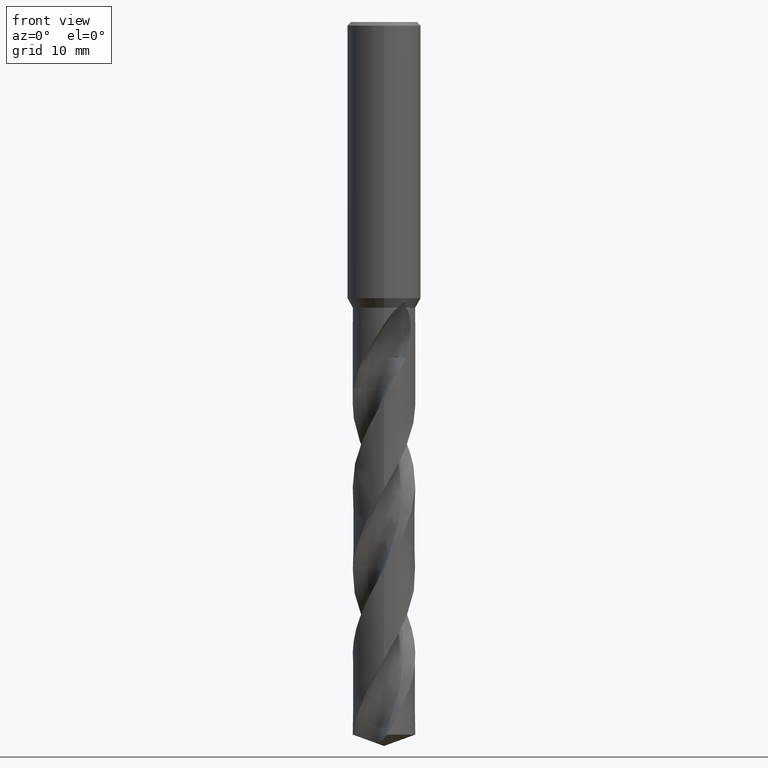
[diagram: clean part render]
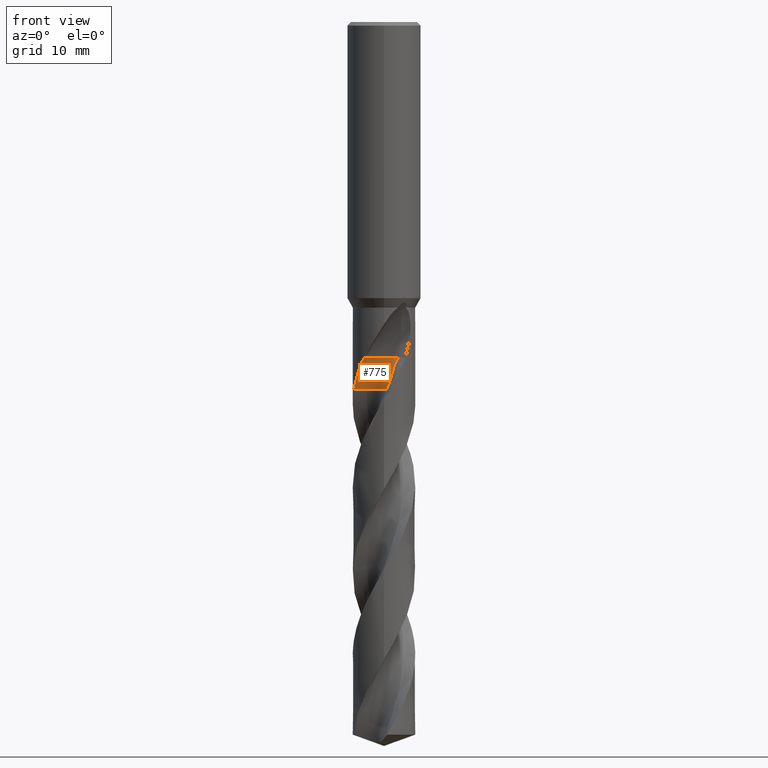
[diagram: same view with one face highlighted and labeled with its STEP entity id]
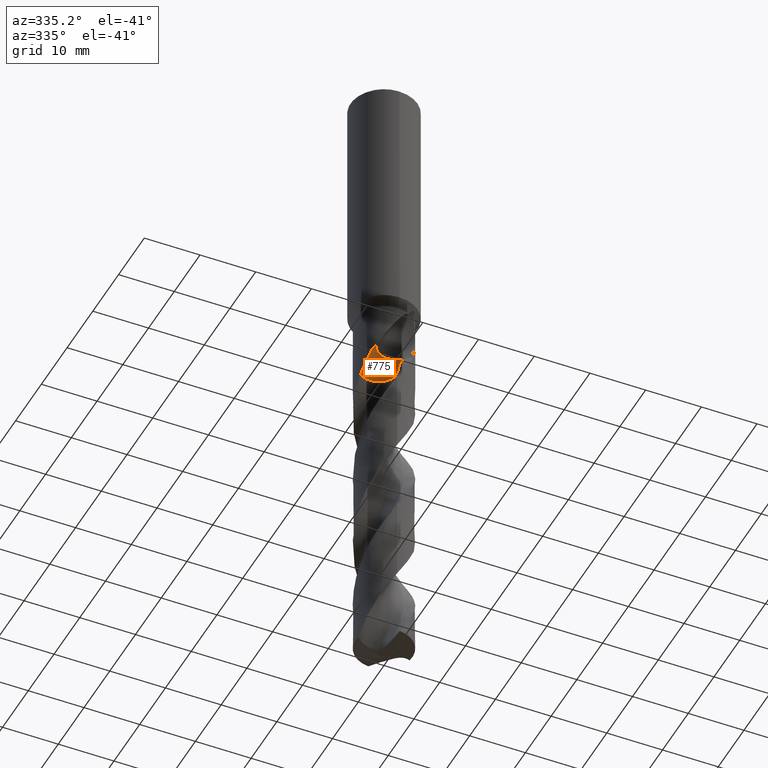
[diagram: same view with one face highlighted and labeled with its STEP entity id]
A machine part, front view. The second image highlights one B-rep face of the part: STEP entity #775.
A second angle (auxiliary view) of the same face is appended — the face is thin or edge-on in the first view.
In plain terms, the highlighted face is a freeform B-spline surface patch.
Its self-contained STEP definition (entity closure, byte-faithful):
#363=VERTEX_POINT('',#922);
#397=EDGE_CURVE('',#799,#811,#961,.T.);
#463=VERTEX_POINT('',#1033);
#479=VERTEX_POINT('',#1050);
#581=EDGE_CURVE('',#363,#479,#1158,.T.);
#591=EDGE_CURVE('',#479,#799,#1168,.T.);
#731=EDGE_CURVE('',#463,#363,#1322,.T.);
#767=EDGE_CURVE('',#811,#463,#1362,.T.);
#775=ADVANCED_FACE('',(#1371),#1372,.F.);
#799=VERTEX_POINT('',#1400);
#811=VERTEX_POINT('',#1415);
#922=CARTESIAN_POINT('',(2.40416305596356,-2.52583694403645,-54.7162));
#961=B_SPLINE_CURVE_WITH_KNOTS('',3,(#3474,#3475,#3476,#3477,#3478,#3479,#3480,#3481,#3482,#3483,#3484,#3485,#3486,#3487,#3488,#3489),.UNSPECIFIED.,.F.,.F.,(4,2,2,2,2,2,2,4),(0.0,0.365208490807169,2.11289841274765,3.03776847283765,3.53199496207244,3.7221898540504,3.9123286185388,4.11015792298178),.UNSPECIFIED.);
#1033=CARTESIAN_POINT('',(0.551994930176642,-1.57509240623602,-54.7162));
#1050=CARTESIAN_POINT('',(0.485538655349555,-3.17040112646382,-59.8));
#1158=B_SPLINE_CURVE_WITH_KNOTS('',3,(#4535,#4536,#4537,#4538,#4539,#4540,#4541,#4542,#4543,#4544,#4545,#4546,#4547,#4548,#4549,#4550,#4551,#4552,#4553,#4554,#4555,#4556,#4557,#4558,#4559,#4560,#4561,#4562,#4563,#4564,#4565,#4566,#4567,#4568,#4569,#4570,#4571,#4572,#4573,#4574,#4575,#4576,#4577,#4578,#4579,#4580,#4581,#4582,#4583,#4584,#4585,#4586,#4587,#4588,#4589,#4590,#4591,#4592,#4593,#4594,#4595,#4596,#4597),.UNSPECIFIED.,.F.,.F.,(4,2,2,2,2,2,2,2,2,2,2,2,1,2,1,2,1,2,1,2,1,2,1,2,1,2,1,2,1,2,2,2,2,2,2,4),(0.0,1.27084674611956,2.54169349223912,3.81254023835867,5.08338698447823,6.35423373059779,7.62508047671735,10.1667739689565,12.7084674611956,15.2501609534347,17.7918544456738,20.3335479379129,22.875241430152,25.4169349223912,27.9586284146303,30.5003219068694,33.0420153991085,35.5837088913476,38.1254023835867,40.6670958758259,43.208789368065,45.7504828603041,48.2921763525432,50.8338698447823,53.3755633370214,55.9172568292606,58.4589503214997,61.0006438137388,63.5423373059779,66.084030798217,68.6257242904561,71.1674177826953,73.7091112749344,76.2508047671735,78.7924982594126,81.3341917516517),.UNSPECIFIED.);
#1168=B_SPLINE_CURVE_WITH_KNOTS('',3,(#4615,#4616,#4617,#4618,#4619,#4620,#4621,#4622,#4623,#4624,#4625,#4626,#4627,#4628),.UNSPECIFIED.,.F.,.F.,(4,2,2,2,2,2,4),(0.0,1.32756114237504,2.65438949407459,3.98104860289553,5.30818100702156,6.18177255776332,7.05538390784949),.UNSPECIFIED.);
#1322=CIRCLE('',#7360,3.4);
#1362=CIRCLE('',#7774,3.4);
#1371=FACE_OUTER_BOUND('',#7799,.T.);
#1372=B_SPLINE_SURFACE_WITH_KNOTS('',3,3,((#7800,#7801,#7802,#7803,#7804,#7805,#7806,#7807,#7808,#7809,#7810,#7811,#7812,#7813,#7814,#7815,#7816,#7817,#7818,#7819,#7820,#7821,#7822,#7823,#7824,#7825,#7826,#7827,#7828,#7829,#7830,#7831,#7832,#7833,#7834,#7835,#7836,#7837,#7838,#7839,#7840,#7841,#7842,#7843,#7844,#7845,#7846,#7847,#7848,#7849,#7850,#7851,#7852,#7853,#7854,#7855,#7856,#7857,#7858,#7859,#7860,#7861,#7862),(#7863,#7864,#7865,#7866,#7867,#7868,#7869,#7870,#7871,#7872,#7873,#7874,#7875,#7876,#7877,#7878,#7879,#7880,#7881,#7882,#7883,#7884,#7885,#7886,#7887,#7888,#7889,#7890,#7891,#7892,#7893,#7894,#7895,#7896,#7897,#7898,#7899,#7900,#7901,#7902,#7903,#7904,#7905,#7906,#7907,#7908,#7909,#7910,#7911,#7912,#7913,#7914,#7915,#7916,#7917,#7918,#7919,#7920,#7921,#7922,#7923,#7924,#7925),(#7926,#7927,#7928,#7929,#7930,#7931,#7932,#7933,#7934,#7935,#7936,#7937,#7938,#7939,#7940,#7941,#7942,#7943,#7944,#7945,#7946,#7947,#7948,#7949,#7950,#7951,#7952,#7953,#7954,#7955,#7956,#7957,#7958,#7959,#7960,#7961,#7962,#7963,#7964,#7965,#7966,#7967,#7968,#7969,#7970,#7971,#7972,#7973,#7974,#7975,#7976,#7977,#7978,#7979,#7980,#7981,#7982,#7983,#7984,#7985,#7986,#7987,#7988),(#7989,#7990,#7991,#7992,#7993,#7994,#7995,#7996,#7997,#7998,#7999,#8000,#8001,#8002,#8003,#8004,#8005,#8006,#8007,#8008,#8009,#8010,#8011,#8012,#8013,#8014,#8015,#8016,#8017,#8018,#8019,#8020,#8021,#8022,#8023,#8024,#8025,#8026,#8027,#8028,#8029,#8030,#8031,#8032,#8033,#8034,#8035,#8036,#8037,#8038,#8039,#8040,#8041,#8042,#8043,#8044,#8045,#8046,#8047,#8048,#8049,#8050,#8051),(#8052,#8053,#8054,#8055,#8056,#8057,#8058,#8059,#8060,#8061,#8062,#8063,#8064,#8065,#8066,#8067,#8068,#8069,#8070,#8071,#8072,#8073,#8074,#8075,#8076,#8077,#8078,#8079,#8080,#8081,#8082,#8083,#8084,#8085,#8086,#8087,#8088,#8089,#8090,#8091,#8092,#8093,#8094,#8095,#8096,#8097,#8098,#8099,#8100,#8101,#8102,#8103,#8104,#8105,#8106,#8107,#8108,#8109,#8110,#8111,#8112,#8113,#8114),(#8115,#8116,#8117,#8118,#8119,#8120,#8121,#8122,#8123,#8124,#8125,#8126,#8127,#8128,#8129,#8130,#8131,#8132,#8133,#8134,#8135,#8136,#8137,#8138,#8139,#8140,#8141,#8142,#8143,#8144,#8145,#8146,#8147,#8148,#8149,#8150,#8151,#8152,#8153,#8154,#8155,#8156,#8157,#8158,#8159,#8160,#8161,#8162,#8163,#8164,#8165,#8166,#8167,#8168,#8169,#8170,#8171,#8172,#8173,#8174,#8175,#8176,#8177),(#8178,#8179,#8180,#8181,#8182,#8183,#8184,#8185,#8186,#8187,#8188,#8189,#8190,#8191,#8192,#8193,#8194,#8195,#8196,#8197,#8198,#8199,#8200,#8201,#8202,#8203,#8204,#8205,#8206,#8207,#8208,#8209,#8210,#8211,#8212,#8213,#8214,#8215,#8216,#8217,#8218,#8219,#8220,#8221,#8222,#8223,#8224,#8225,#8226,#8227,#8228,#8229,#8230,#8231,#8232,#8233,#8234,#8235,#8236,#8237,#8238,#8239,#8240),(#8241,#8242,#8243,#8244,#8245,#8246,#8247,#8248,#8249,#8250,#8251,#8252,#8253,#8254,#8255,#8256,#8257,#8258,#8259,#8260,#8261,#8262,#8263,#8264,#8265,#8266,#8267,#8268,#8269,#8270,#8271,#8272,#8273,#8274,#8275,#8276,#8277,#8278,#8279,#8280,#8281,#8282,#8283,#8284,#8285,#8286,#8287,#8288,#8289,#8290,#8291,#8292,#8293,#8294,#8295,#8296,#8297,#8298,#8299,#8300,#8301,#8302,#8303),(#8304,#8305,#8306,#8307,#8308,#8309,#8310,#8311,#8312,#8313,#8314,#8315,#8316,#8317,#8318,#8319,#8320,#8321,#8322,#8323,#8324,#8325,#8326,#8327,#8328,#8329,#8330,#8331,#8332,#8333,#8334,#8335,#8336,#8337,#8338,#8339,#8340,#8341,#8342,#8343,#8344,#8345,#8346,#8347,#8348,#8349,#8350,#8351,#8352,#8353,#8354,#8355,#8356,#8357,#8358,#8359,#8360,#8361,#8362,#8363,#8364,#8365,#8366),(#8367,#8368,#8369,#8370,#8371,#8372,#8373,#8374,#8375,#8376,#8377,#8378,#8379,#8380,#8381,#8382,#8383,#8384,#8385,#8386,#8387,#8388,#8389,#8390,#8391,#8392,#8393,#8394,#8395,#8396,#8397,#8398,#8399,#8400,#8401,#8402,#8403,#8404,#8405,#8406,#8407,#8408,#8409,#8410,#8411,#8412,#8413,#8414,#8415,#8416,#8417,#8418,#8419,#8420,#8421,#8422,#8423,#8424,#8425,#8426,#8427,#8428,#8429),(#8430,#8431,#8432,#8433,#8434,#8435,#8436,#8437,#8438,#8439,#8440,#8441,#8442,#8443,#8444,#8445,#8446,#8447,#8448,#8449,#8450,#8451,#8452,#8453,#8454,#8455,#8456,#8457,#8458,#8459,#8460,#8461,#8462,#8463,#8464,#8465,#8466,#8467,#8468,#8469,#8470,#8471,#8472,#8473,#8474,#8475,#8476,#8477,#8478,#8479,#8480,#8481,#8482,#8483,#8484,#8485,#8486,#8487,#8488,#8489,#8490,#8491,#8492)),.UNSPECIFIED.,.F.,.F.,.F.,(4,1,1,1,1,1,1,1,4),(4,2,2,2,2,2,2,2,2,2,2,2,1,2,1,2,1,2,1,2,1,2,1,2,1,2,1,2,1,2,2,2,2,2,2,4),(-1.16802619425531E-016,0.392700999111276,0.785401998222551,1.17810299733383,1.5708039964451,1.96350499555638,2.35620599466765,2.74890699377893,3.14160799289021),(0.0,1.27084674611956,2.54169349223912,3.81254023835867,5.08338698447823,6.35423373059779,7.62508047671735,10.1667739689565,12.7084674611956,15.2501609534347,17.7918544456738,20.3335479379129,22.875241430152,25.4169349223912,27.9586284146303,30.5003219068694,33.0420153991085,35.5837088913476,38.1254023835867,40.6670958758259,43.208789368065,45.7504828603041,48.2921763525432,50.8338698447823,53.3755633370214,55.9172568292606,58.4589503214997,61.0006438137388,63.5423373059779,66.084030798217,68.6257242904561,71.1674177826953,73.7091112749344,76.2508047671735,78.7924982594126,81.3341917516517),.UNSPECIFIED.);
#1400=CARTESIAN_POINT('',(-4.90255255224733,-1.40533927307721,-59.8));
#1415=CARTESIAN_POINT('',(-3.24979370895934,-3.93050134832801,-54.7162));
#3474=CARTESIAN_POINT('',(-4.90255255224733,-1.4053392730772,-59.8));
#3475=CARTESIAN_POINT('',(-4.88585317669953,-1.46359535954773,-59.6944203960318));
#3476=CARTESIAN_POINT('',(-4.86807177334849,-1.52171577028779,-59.5883322098729));
#3477=CARTESIAN_POINT('',(-4.7584431943954,-1.85819941566407,-58.9737380642478));
#3478=CARTESIAN_POINT('',(-4.6459280303644,-2.12386039487719,-58.4895263425246));
#3479=CARTESIAN_POINT('',(-4.43714527290306,-2.51906061979727,-57.7271574604795));
#3480=CARTESIAN_POINT('',(-4.35729634123244,-2.65486946062305,-57.4594380215544));
#3481=CARTESIAN_POINT('',(-4.22648358085214,-2.85548482822998,-57.0213720083999));
#3482=CARTESIAN_POINT('',(-4.18054151132408,-2.9221948016905,-56.8680294028719));
#3483=CARTESIAN_POINT('',(-4.11696247418222,-3.01023765671598,-56.6530906898996));
#3484=CARTESIAN_POINT('',(-4.06120086551339,-3.08791399560232,-56.4621296381139));
#3485=CARTESIAN_POINT('',(-3.89055324956199,-3.30032570677254,-55.9746839802418));
#3486=CARTESIAN_POINT('',(-3.78776976555315,-3.41932737526018,-55.7121064579332));
#3487=CARTESIAN_POINT('',(-3.54645655690735,-3.66933763947247,-55.202175474923));
#3488=CARTESIAN_POINT('',(-3.40742610614629,-3.80016866877703,-54.9551355513481));
#3489=CARTESIAN_POINT('',(-3.24979370895934,-3.93050134832801,-54.7162));
#4535=CARTESIAN_POINT('',(2.40416305596356,-2.52583694403645,-54.7162));
#4536=CARTESIAN_POINT('',(2.13452206408612,-2.50888356936328,-55.0453790691825));
#4537=CARTESIAN_POINT('',(1.93198421891544,-2.52558221228198,-55.3736297835603));
#4538=CARTESIAN_POINT('',(1.6592907188685,-2.62118615837136,-56.0302203805336));
#4539=CARTESIAN_POINT('',(1.56764653768154,-2.68892562940949,-56.3582870304646));
#4540=CARTESIAN_POINT('',(1.4517390389522,-2.87500194842783,-57.0216052325561));
#4541=CARTESIAN_POINT('',(1.36086056683467,-2.9443459931971,-57.353426439878));
#4542=CARTESIAN_POINT('',(1.13480147468256,-3.03159153624726,-58.012809100934));
#4543=CARTESIAN_POINT('',(1.01554777676926,-3.06521751326689,-58.3421048823683));
#4544=CARTESIAN_POINT('',(0.770800570265272,-3.11452127317813,-58.999353477102));
#4545=CARTESIAN_POINT('',(0.65194005328406,-3.13819063394278,-59.3284010648809));
#4546=CARTESIAN_POINT('',(0.419300005024396,-3.18393064450167,-59.988243413498));
#4547=CARTESIAN_POINT('',(0.30081880246897,-3.19890574759793,-60.3181191224188));
#4548=CARTESIAN_POINT('',(-0.056135844405576,-3.2233204310904,-61.3074711949228));
#4549=CARTESIAN_POINT('',(-0.298493706769256,-3.206653550682,-61.9668622165145));
#4550=CARTESIAN_POINT('',(-0.770965525130801,-3.12835571819219,-63.2850097284002));
#4551=CARTESIAN_POINT('',(-1.00324967213778,-3.05868697900726,-63.9442033319799));
#4552=CARTESIAN_POINT('',(-1.4464233719898,-2.87950351447036,-65.2629472685881));
#4553=CARTESIAN_POINT('',(-1.65753706619742,-2.75991285504195,-65.9222433553619));
#4554=CARTESIAN_POINT('',(-2.04984986706054,-2.48670518717719,-67.2406877100124));
#4555=CARTESIAN_POINT('',(-2.22907993249296,-2.32300694548385,-67.8999997093854));
#4556=CARTESIAN_POINT('',(-2.55016826090063,-1.9676833682403,-69.2186700936505));
#4557=CARTESIAN_POINT('',(-2.68909164535803,-1.76956269442067,-69.8778134418226));
#4558=CARTESIAN_POINT('',(-2.92796539948245,-1.35837430001565,-71.1962730067231));
#4559=CARTESIAN_POINT('',(-3.10788030364009,-0.905714196165439,-72.5153067291772));
#4560=CARTESIAN_POINT('',(-3.18504356818098,-0.427856281559478,-73.8331140780605));
#4561=CARTESIAN_POINT('',(-3.22641789930418,0.0440943209444422,-75.1517646490794));
#4562=CARTESIAN_POINT('',(-3.19513950645448,0.529230056236099,-76.4710787327387));
#4563=CARTESIAN_POINT('',(-3.05734411844839,0.993604234455079,-77.788979151107));
#4564=CARTESIAN_POINT('',(-2.88918417985052,1.43699273253564,-79.1074896510165));
#4565=CARTESIAN_POINT('',(-2.65041939185217,1.86065206790404,-80.4266758784825));
#4566=CARTESIAN_POINT('',(-2.32533569417196,2.21956658672777,-81.7445544240622));
#4567=CARTESIAN_POINT('',(-1.98197313091896,2.54647722634938,-83.0631188791242));
#4568=CARTESIAN_POINT('',(-1.58334533138561,2.82499168231085,-84.3823484075522));
#4569=CARTESIAN_POINT('',(-1.13482409285264,3.00767522519798,-85.7002306330587));
#4570=CARTESIAN_POINT('',(-0.683715521954006,3.15360382848412,-87.0187757506905));
#4571=CARTESIAN_POINT('',(-0.203789647354989,3.23200711297506,-88.3379923270516));
#4572=CARTESIAN_POINT('',(0.279599783847384,3.20244262187172,-89.655877603375));
#4573=CARTESIAN_POINT('',(0.749414619230502,3.13860296351913,-90.9744329320282));
#4574=CARTESIAN_POINT('',(1.21596524531006,3.00140575151373,-92.2936518557188));
#4575=CARTESIAN_POINT('',(1.63887204792599,2.76542986323138,-93.6115253599088));
#4576=CARTESIAN_POINT('',(2.03470707899502,2.50448382284656,-94.9300645813711));
#4577=CARTESIAN_POINT('',(2.39584232590063,2.17885810363837,-96.2492870990517));
#4578=CARTESIAN_POINT('',(2.67484048024947,1.78298132318157,-97.5672013702252));
#4579=CARTESIAN_POINT('',(2.91855067450002,1.37621250951635,-98.8857935812417));
#4580=CARTESIAN_POINT('',(3.10297022759755,0.926190534424411,-100.204996461901));
#4581=CARTESIAN_POINT('',(3.18335148883668,0.448841859609332,-101.52278409564));
#4582=CARTESIAN_POINT('',(3.22764487581939,-0.0228435708357756,-102.841233575697));
#4583=CARTESIAN_POINT('',(3.19914009912766,-0.508256546653627,-104.16052765071));
#4584=CARTESIAN_POINT('',(3.06229504053997,-0.973947073433946,-105.478594975855));
#4585=CARTESIAN_POINT('',(2.89386817722305,-1.41867128271715,-106.797234467356));
#4586=CARTESIAN_POINT('',(2.77729144107486,-1.63119598350252,-107.456642430394));
#4587=CARTESIAN_POINT('',(2.50581597186482,-2.02573135823131,-108.775087658327));
#4588=CARTESIAN_POINT('',(2.34385654398343,-2.20643647057957,-109.434328104513));
#4589=CARTESIAN_POINT('',(1.99343856171104,-2.53166271775215,-110.752936635585));
#4590=CARTESIAN_POINT('',(1.79573766224029,-2.67214856097973,-111.412178171078));
#4591=CARTESIAN_POINT('',(1.38204665381907,-2.91157503276333,-112.730689791238));
#4592=CARTESIAN_POINT('',(1.15755514780364,-3.00425950069469,-113.390111183191));
#4593=CARTESIAN_POINT('',(0.699210884867895,-3.14382574691478,-114.708795277507));
#4594=CARTESIAN_POINT('',(0.461002393995051,-3.18559833549283,-115.367753105342));
#4595=CARTESIAN_POINT('',(-0.011509210282043,-3.22907269751735,-116.685377556545));
#4596=CARTESIAN_POINT('',(-0.256522287655739,-3.21072705776485,-117.344654872341));
#4597=CARTESIAN_POINT('',(-0.497213133102351,-3.16056279282969,-118.003324568109));
#4615=CARTESIAN_POINT('',(0.485538655349533,-3.17040112646378,-59.8));
#4616=CARTESIAN_POINT('',(0.368796714326009,-2.74355735337804,-59.8));
#4617=CARTESIAN_POINT('',(0.169804995572792,-2.34360368597878,-59.8));
#4618=CARTESIAN_POINT('',(-0.370217900720252,-1.64272770563144,-59.8));
#4619=CARTESIAN_POINT('',(-0.705993521404231,-1.34847152317535,-59.8));
#4620=CARTESIAN_POINT('',(-1.47142898257294,-0.905273459427047,-59.8));
#4621=CARTESIAN_POINT('',(-1.89373257326389,-0.760565200338139,-59.8));
#4622=CARTESIAN_POINT('',(-2.77022010229845,-0.641098690353703,-59.8));
#4623=CARTESIAN_POINT('',(-3.21601416546755,-0.6675451468356,-59.8));
#4624=CARTESIAN_POINT('',(-3.92608161558232,-0.851771533869046,-59.8));
#4625=CARTESIAN_POINT('',(-4.19738695823445,-0.960817918243295,-59.8));
#4626=CARTESIAN_POINT('',(-4.7055532097635,-1.24535589411144,-59.8));
#4627=CARTESIAN_POINT('',(-4.94031906993014,-1.41967624514764,-59.8));
#4628=CARTESIAN_POINT('',(-5.14999999999999,-1.62175255111398,-59.8));
#7360=AXIS2_PLACEMENT_3D('',#10274,#10275,#10276);
#7774=AXIS2_PLACEMENT_3D('',#10312,#10313,#10314);
#7799=EDGE_LOOP('',(#10322,#10323,#10324,#10325,#10326));
#7800=CARTESIAN_POINT('',(-2.40416305596355,-7.33416305596355,-54.7162));
#7801=CARTESIAN_POINT('',(-2.67016595556382,-7.32084777291852,-55.045464596345));
#7802=CARTESIAN_POINT('',(-2.94034603997082,-7.27299943349703,-55.3773004001007));
#7803=CARTESIAN_POINT('',(-3.47553935682107,-7.08335957741951,-56.0400503561537));
#7804=CARTESIAN_POINT('',(-3.73963999219366,-6.95276352407475,-56.3712698050725));
#7805=CARTESIAN_POINT('',(-4.24153564938701,-6.6078730223711,-57.0259009073336));
#7806=CARTESIAN_POINT('',(-4.48212922648749,-6.43181705527947,-57.3531454577418));
#7807=CARTESIAN_POINT('',(-4.94933679224479,-6.07892082717167,-58.01233518476));
#7808=CARTESIAN_POINT('',(-5.17371181642857,-5.89195813741261,-58.3423425096498));
#7809=CARTESIAN_POINT('',(-5.60201871609285,-5.49874520250846,-59.0038735121182));
#7810=CARTESIAN_POINT('',(-5.80445588599912,-5.28792682159784,-59.3341739430356));
#7811=CARTESIAN_POINT('',(-6.18130064709149,-4.8387618332609,-59.9928184644777));
#7812=CARTESIAN_POINT('',(-6.35733981709368,-4.60401678003398,-60.3221894580419));
#7813=CARTESIAN_POINT('',(-6.84439772126676,-3.8722559656256,-61.3106109058763));
#7814=CARTESIAN_POINT('',(-7.11599125431137,-3.35004178081611,-61.9697578526696));
#7815=CARTESIAN_POINT('',(-7.53390176700966,-2.25573918832463,-63.2887599286175));
#7816=CARTESIAN_POINT('',(-7.68285609061483,-1.68649138083503,-63.9481266491306));
#7817=CARTESIAN_POINT('',(-7.84665799735012,-0.526420205402508,-65.2664617158431));
#7818=CARTESIAN_POINT('',(-7.86542353825126,0.0618275299261182,-65.9257141440163));
#7819=CARTESIAN_POINT('',(-7.7674391662948,1.22936570143676,-67.2443841079993));
#7820=CARTESIAN_POINT('',(-7.65515053440493,1.80694445711494,-67.9036186980439));
#7821=CARTESIAN_POINT('',(-7.30144010282888,2.9235431999286,-69.2220360648542));
#7822=CARTESIAN_POINT('',(-7.06330925112705,3.46211873291728,-69.8814591126787));
#7823=CARTESIAN_POINT('',(-6.46597223562301,4.47143822007546,-71.2001120508882));
#7824=CARTESIAN_POINT('',(-5.76292584446802,5.41424278263609,-72.5181234511668));
#7825=CARTESIAN_POINT('',(-4.86921438974429,6.18051770630011,-73.8375051384745));
#7826=CARTESIAN_POINT('',(-3.89264817437409,6.83107554341595,-75.155944651679));
#7827=CARTESIAN_POINT('',(-2.84982342053022,7.37569408133176,-76.473642789763));
#7828=CARTESIAN_POINT('',(-1.71221921586191,7.67919184210513,-77.7929204877515));
#7829=CARTESIAN_POINT('',(-0.550325652019457,7.84293683746121,-79.1115165108946));
#7830=CARTESIAN_POINT('',(0.625437706725276,7.88243405399245,-80.4293575094753));
#7831=CARTESIAN_POINT('',(1.78221135679561,7.66333580936245,-81.7486596464638));
#7832=CARTESIAN_POINT('',(2.90037866188332,7.30768971988058,-83.0671953818393));
#7833=CARTESIAN_POINT('',(3.9772587542874,6.83407511034127,-84.3849879969359));
#7834=CARTESIAN_POINT('',(4.9250740734431,6.13564120491226,-85.7042860224085));
#7835=CARTESIAN_POINT('',(5.77895155915101,5.33085166448799,-87.0228433671995));
#7836=CARTESIAN_POINT('',(6.54451429511778,4.43760500603354,-88.3406504584073));
#7837=CARTESIAN_POINT('',(7.09637559564407,3.39760890857563,-89.6599450742685));
#7838=CARTESIAN_POINT('',(7.51752173357849,2.30242977538998,-90.9784910003781));
#7839=CARTESIAN_POINT('',(7.82076924264072,1.16575985673746,-92.2962954526324));
#7840=CARTESIAN_POINT('',(7.86783253253034,-0.0106464754515859,-93.615603226392));
#7841=CARTESIAN_POINT('',(7.7731516902158,-1.18017883192001,-94.9341671830633));
#7842=CARTESIAN_POINT('',(7.55421446717236,-2.33604024516588,-96.2519676815065));
#7843=CARTESIAN_POINT('',(7.08718604426945,-3.41679531524649,-97.5712298869877));
#7844=CARTESIAN_POINT('',(6.49541853110038,-4.43002763365295,-98.8897345122189));
#7845=CARTESIAN_POINT('',(5.79755075715251,-5.3771881343379,-100.207556720199));
#7846=CARTESIAN_POINT('',(4.90835421586497,-6.1489916560959,-101.52696047273));
#7847=CARTESIAN_POINT('',(3.93582792895718,-6.80557557161175,-102.845625014644));
#7848=CARTESIAN_POINT('',(2.89664734920582,-7.35658417456993,-104.163346149754));
#7849=CARTESIAN_POINT('',(1.7617786606192,-7.66819106470713,-105.482436940053));
#7850=CARTESIAN_POINT('',(0.60180676159283,-7.84133731643166,-106.800887061956));
#7851=CARTESIAN_POINT('',(0.01361085098288,-7.86504005854972,-107.460012874377));
#7852=CARTESIAN_POINT('',(-1.15451688020159,-7.77904719081732,-108.778690945021));
#7853=CARTESIAN_POINT('',(-1.73322130186533,-7.67246358962034,-109.438016178911));
#7854=CARTESIAN_POINT('',(-2.85320484199152,-7.32853708836116,-110.756464042494));
#7855=CARTESIAN_POINT('',(-3.39379392119729,-7.09583489108586,-111.415728072632));
#7856=CARTESIAN_POINT('',(-4.40939132786899,-6.51149475802602,-112.734438324669));
#7857=CARTESIAN_POINT('',(-4.88476810607881,-6.16475281585398,-113.39371547636));
#7858=CARTESIAN_POINT('',(-5.74582937367489,-5.37088344073088,-114.712019114353));
#7859=CARTESIAN_POINT('',(-6.13245743947137,-4.92673936015174,-115.371386297583));
#7860=CARTESIAN_POINT('',(-6.79199365637644,-3.9572539174985,-116.689621448049));
#7861=CARTESIAN_POINT('',(-7.0701401935682,-3.44106862075948,-117.347807138992));
#7862=CARTESIAN_POINT('',(-7.29232907746843,-2.90290659687555,-118.00687204445));
#7863=CARTESIAN_POINT('',(-2.71885547865695,-7.01944399006192,-54.7162));
#7864=CARTESIAN_POINT('',(-2.9850965031964,-7.00636680979323,-55.0454708696599));
#7865=CARTESIAN_POINT('',(-3.25105176036579,-6.95409141819801,-55.3775696020988));
#7866=CARTESIAN_POINT('',(-3.76757435229738,-6.74727118475657,-56.0407712836166));
#7867=CARTESIAN_POINT('',(-4.01869278963768,-6.60538808788804,-56.3722219559257));
#7868=CARTESIAN_POINT('',(-4.48583689721026,-6.23523694275825,-57.0262159528792));
#7869=CARTESIAN_POINT('',(-4.71036860198037,-6.04938273443846,-57.3531248506023));
#7870=CARTESIAN_POINT('',(-5.1487681401618,-5.68070452536137,-58.0123004278786));
#7871=CARTESIAN_POINT('',(-5.35870536527176,-5.48686224536454,-58.3423599363939));
#7872=CARTESIAN_POINT('',(-5.75804874287563,-5.08163647009149,-59.0042050109287));
#7873=CARTESIAN_POINT('',(-5.94513823960587,-4.86534860668477,-59.3345973218999));
#7874=CARTESIAN_POINT('',(-6.28959111386328,-4.4067468091828,-59.9931539996949));
#7875=CARTESIAN_POINT('',(-6.44928594518048,-4.16823528051244,-60.3224879736041));
#7876=CARTESIAN_POINT('',(-6.88685174568395,-3.42796130560333,-61.3108411746669));
#7877=CARTESIAN_POINT('',(-7.12535705771161,-2.90383504453065,-61.969970221183));
#7878=CARTESIAN_POINT('',(-7.47676998865847,-1.81310633309523,-63.2890349637919));
#7879=CARTESIAN_POINT('',(-7.59302699952932,-1.24931388073264,-63.9484144024897));
#7880=CARTESIAN_POINT('',(-7.69263044827062,-0.107530367694456,-65.2667194459418));
#7881=CARTESIAN_POINT('',(-7.68072285142531,0.468126845355056,-65.9259686895699));
#7882=CARTESIAN_POINT('',(-7.52420574955975,1.60357248597142,-67.2446552018067));
#7883=CARTESIAN_POINT('',(-7.38482938752041,2.16207014106789,-67.9038841143361));
#7884=CARTESIAN_POINT('',(-6.98129527648999,3.23450108236099,-69.2222829234617));
#7885=CARTESIAN_POINT('',(-6.72088262975611,3.7483973816685,-69.8817264839703));
#7886=CARTESIAN_POINT('',(-6.08440016835018,4.70298506595542,-71.2003936063973));
#7887=CARTESIAN_POINT('',(-5.34927622459558,5.5879983659749,-72.5183300366334));
#7888=CARTESIAN_POINT('',(-4.43669052132256,6.29072845536497,-73.8378271606128));
#7889=CARTESIAN_POINT('',(-3.44843727902987,6.87466142707746,-75.1562512287804));
#7890=CARTESIAN_POINT('',(-2.4017221791218,7.3530740574308,-76.4738308167439));
#7891=CARTESIAN_POINT('',(-1.27465017401151,7.59113451647888,-77.7932095677006));
#7892=CARTESIAN_POINT('',(-0.131062101336796,7.68984024494703,-79.1118118161392));
#7893=CARTESIAN_POINT('',(1.01955522365247,7.66801191919984,-80.4295542253043));
#7894=CARTESIAN_POINT('',(2.13849545263935,7.39448096717897,-81.7489606541323));
#7895=CARTESIAN_POINT('',(3.21198714151908,6.988125669663,-83.0674944194776));
#7896=CARTESIAN_POINT('',(4.23963847308323,6.47012151416988,-84.3851815617974));
#7897=CARTESIAN_POINT('',(5.12978300236561,5.7390111302187,-85.7045834190294));
#7898=CARTESIAN_POINT('',(5.92143471983106,4.90786295988048,-87.023141709435));
#7899=CARTESIAN_POINT('',(6.62340210662978,3.99592404451228,-88.3408454075437));
#7900=CARTESIAN_POINT('',(7.10913020274737,2.95144927221933,-89.6602433518048));
#7901=CARTESIAN_POINT('',(7.4627751270395,1.85945839652613,-90.9787886475048));
#7902=CARTESIAN_POINT('',(7.70060756047828,0.733479450461933,-92.2964892983426));
#7903=CARTESIAN_POINT('',(7.68612045241198,-0.418325200572246,-93.6159023361502));
#7904=CARTESIAN_POINT('',(7.53197387388052,-1.55575065477601,-94.934468026448));
#7905=CARTESIAN_POINT('',(7.25869927868497,-2.67364400397533,-96.2521642851906));
#7906=CARTESIAN_POINT('',(6.74684747207182,-3.70556951420946,-97.5715253563161));
#7907=CARTESIAN_POINT('',(6.11538916923791,-4.66411799013014,-98.8900235198482));
#7908=CARTESIAN_POINT('',(5.38498609551555,-5.55353136024879,-100.207744455845));
#7909=CARTESIAN_POINT('',(4.47652009366255,-6.26187489927088,-101.527266851973));
#7910=CARTESIAN_POINT('',(3.49189504351822,-6.85190727390782,-102.845946996526));
#7911=CARTESIAN_POINT('',(2.44842401377159,-7.33676691781038,-104.16355286556));
#7912=CARTESIAN_POINT('',(1.32364292829294,-7.58305335848409,-105.482718777729));
#7913=CARTESIAN_POINT('',(0.181448616363808,-7.69130358421732,-106.801154873017));
#7914=CARTESIAN_POINT('',(-0.394387564167907,-7.68413931918618,-107.460260089531));
#7915=CARTESIAN_POINT('',(-1.53106212791285,-7.53946175341422,-108.778955181236));
#7916=CARTESIAN_POINT('',(-2.09096229257971,-7.40560291900163,-109.438286679645));
#7917=CARTESIAN_POINT('',(-3.16714753005167,-7.01131009346653,-110.756722723046));
#7918=CARTESIAN_POINT('',(-3.68331042651914,-6.75616684518534,-111.415988376654));
#7919=CARTESIAN_POINT('',(-4.64499049990959,-6.13243414563397,-112.734713285716));
#7920=CARTESIAN_POINT('',(-5.09160604992189,-5.76927294636333,-113.393979889506));
#7921=CARTESIAN_POINT('',(-5.89157270122192,-4.94904829037764,-114.712255474269));
#7922=CARTESIAN_POINT('',(-6.24639699277928,-4.4951914613251,-115.37165276954));
#7923=CARTESIAN_POINT('',(-6.83963426607908,-3.51346807280093,-116.689932679092));
#7924=CARTESIAN_POINT('',(-7.08519710034762,-2.99511556360446,-117.348038232224));
#7925=CARTESIAN_POINT('',(-7.2754464754502,-2.45816586183669,-118.007132215328));
#7926=CARTESIAN_POINT('',(-3.2229554983837,-6.26499673908634,-54.7162000000001));
#7927=CARTESIAN_POINT('',(-3.48976735407826,-6.25230097689941,-55.0454811852005));
#7928=CARTESIAN_POINT('',(-3.74551428070887,-6.19285338051399,-55.37801235186));
#7929=CARTESIAN_POINT('',(-4.21787147415561,-5.95910401261857,-56.0419569772558));
#7930=CARTESIAN_POINT('',(-4.43854266904495,-5.79981387633076,-56.3737879436915));
#7931=CARTESIAN_POINT('',(-4.82615270906052,-5.39297204935965,-57.0267340942061));
#7932=CARTESIAN_POINT('',(-5.01467104955653,-5.1939127289727,-57.3530909579395));
#7933=CARTESIAN_POINT('',(-5.38919076792693,-4.80513307506449,-58.0122432645978));
#7934=CARTESIAN_POINT('',(-5.5675226838957,-4.60327593896555,-58.3423885983942));
#7935=CARTESIAN_POINT('',(-5.90417420475876,-4.18554717942089,-59.0047502188506));
#7936=CARTESIAN_POINT('',(-6.05839979763131,-3.96442579414108,-59.3352936530337));
#7937=CARTESIAN_POINT('',(-6.33432985492373,-3.49983547968134,-59.9937058372869));
#7938=CARTESIAN_POINT('',(-6.45984509087105,-3.2602921503217,-60.3229789400271));
#7939=CARTESIAN_POINT('',(-6.79506216606507,-2.52267666410906,-61.3112198831713));
#7940=CARTESIAN_POINT('',(-6.96664461193532,-2.00788501650094,-61.9703194875613));
#7941=CARTESIAN_POINT('',(-7.1865115525053,-0.950746251342676,-63.2894873191661));
#7942=CARTESIAN_POINT('',(-7.23955709992033,-0.41086471752049,-63.9488876072594));
#7943=CARTESIAN_POINT('',(-7.21806302840283,0.668821797511178,-65.2671433853991));
#7944=CARTESIAN_POINT('',(-7.14982884019406,1.20710567751732,-65.9263873375165));
#7945=CARTESIAN_POINT('',(-6.88903297442756,2.25510343081555,-67.2451010609621));
#7946=CARTESIAN_POINT('',(-6.70308041624822,2.76467512139252,-67.9043206380728));
#7947=CARTESIAN_POINT('',(-6.2174838286511,3.72897599995874,-69.2226889266107));
#7948=CARTESIAN_POINT('',(-5.92233101804353,4.18466359814815,-69.8821662109264));
#7949=CARTESIAN_POINT('',(-5.22933896658418,5.01424395649015,-71.2008566868584));
#7950=CARTESIAN_POINT('',(-4.4530549469004,5.77094303630562,-72.5186697793685));
#7951=CARTESIAN_POINT('',(-3.52799808594075,6.3391045822357,-73.8383568179252));
#7952=CARTESIAN_POINT('',(-2.54287001142483,6.78516840757678,-75.1567554143416));
#7953=CARTESIAN_POINT('',(-1.51470356741911,7.12965004239361,-76.474140124081));
#7954=CARTESIAN_POINT('',(-0.434713515953508,7.24105168539277,-77.7936849184603));
#7955=CARTESIAN_POINT('',(0.646407546429079,7.21698574202617,-79.112297590401));
#7956=CARTESIAN_POINT('',(1.72235642802878,7.08253181562333,-80.4298776063751));
#7957=CARTESIAN_POINT('',(2.74399987295926,6.71520326984177,-81.749455928143));
#7958=CARTESIAN_POINT('',(3.70799395111699,6.22521684161286,-83.0679860263592));
#7959=CARTESIAN_POINT('',(4.61955633914759,5.63802874980828,-84.3854999831916));
#7960=CARTESIAN_POINT('',(5.38138940123455,4.86451271606882,-85.7050726146989));
#7961=CARTESIAN_POINT('',(6.03813385423337,4.00540329581679,-87.0236323119307));
#7962=CARTESIAN_POINT('',(6.60550414805588,3.08137733139881,-88.3411660134442));
#7963=CARTESIAN_POINT('',(6.9572126253125,2.05424581537336,-89.6607340413608));
#7964=CARTESIAN_POINT('',(7.17715144604143,0.995472873125656,-90.9792780616787));
#7965=CARTESIAN_POINT('',(7.28843264576454,-0.08311540734062,-92.2968082373172));
#7966=CARTESIAN_POINT('',(7.16065388769935,-1.16125071454793,-93.6163941437803));
#7967=CARTESIAN_POINT('',(6.90036855648324,-2.21082858269962,-94.934962948066));
#7968=CARTESIAN_POINT('',(6.53354067863206,-3.23119373216082,-96.2524876010769));
#7969=CARTESIAN_POINT('',(5.95147868859677,-4.14765609948806,-97.5720112441443));
#7970=CARTESIAN_POINT('',(5.26240125504555,-4.98107633815307,-98.8904989079628));
#7971=CARTESIAN_POINT('',(4.48990525011488,-5.7420816348618,-100.20805332976));
#7972=CARTESIAN_POINT('',(3.56814416954982,-6.31586921992402,-101.527770464398));
#7973=CARTESIAN_POINT('',(2.58579170441243,-6.76801524613234,-102.846476835301));
#7974=CARTESIAN_POINT('',(1.56004672615948,-7.11889872077037,-104.163892807856));
#7975=CARTESIAN_POINT('',(0.481412108654562,-7.23858319287597,-105.483182104168));
#7976=CARTESIAN_POINT('',(-0.599427739437065,-7.22413822977736,-106.801595541358));
#7977=CARTESIAN_POINT('',(-1.13827496458596,-7.16016797268141,-107.460666600631));
#7978=CARTESIAN_POINT('',(-2.18871969380742,-6.91065344300151,-108.779389842534));
#7979=CARTESIAN_POINT('',(-2.70017287821712,-6.7297334014194,-109.438731481034));
#7980=CARTESIAN_POINT('',(-3.66875113380019,-6.25214615612339,-110.757148254051));
#7981=CARTESIAN_POINT('',(-4.12714798624667,-5.96184365845551,-111.416416634542));
#7982=CARTESIAN_POINT('',(-4.96535103866954,-5.28078332623702,-112.735165366135));
#7983=CARTESIAN_POINT('',(-5.34792693418408,-4.89622784685779,-113.394414548202));
#7984=CARTESIAN_POINT('',(-6.01524955362933,-4.04759881977017,-114.712644425595));
#7985=CARTESIAN_POINT('',(-6.30261731656232,-3.58696780655232,-115.372090968124));
#7986=CARTESIAN_POINT('',(-6.7584179660583,-2.60713827396999,-116.690444615508));
#7987=CARTESIAN_POINT('',(-6.93796534079149,-2.0974096615544,-117.348418557921));
#7988=CARTESIAN_POINT('',(-7.06483123070512,-1.57558525929762,-118.007560112435));
#7989=CARTESIAN_POINT('',(-3.4885122134362,-4.93000345458997,-54.7162000000004));
#7990=CARTESIAN_POINT('',(-3.75633415610581,-4.91750861907357,-55.04548762562));
#7991=CARTESIAN_POINT('',(-3.99381584641649,-4.85398094002276,-55.3782887419875));
#7992=CARTESIAN_POINT('',(-4.38950477131475,-4.60826207575243,-56.0426971562866));
#7993=CARTESIAN_POINT('',(-4.55798603486102,-4.44232462630684,-56.3747655217432));
#7994=CARTESIAN_POINT('',(-4.81430350106263,-4.03029006235677,-57.027057550845));
#7995=CARTESIAN_POINT('',(-4.94532933803164,-3.83360291696331,-57.3530697992471));
#7996=CARTESIAN_POINT('',(-5.21977659740448,-3.45363437986185,-58.0122075808693));
#7997=CARTESIAN_POINT('',(-5.34970471890798,-3.25881232965562,-58.3424064915066));
#7998=CARTESIAN_POINT('',(-5.59229222869189,-2.85974346159924,-59.0050905687477));
#7999=CARTESIAN_POINT('',(-5.69819603964394,-2.65078852418332,-59.3357283372262));
#8000=CARTESIAN_POINT('',(-5.87572025099299,-2.21723435044256,-59.9940503326647));
#8001=CARTESIAN_POINT('',(-5.95327252591157,-1.99588193893406,-60.3232854311244));
#8002=CARTESIAN_POINT('',(-6.14816715976694,-1.32070454752809,-61.3114562925083));
#8003=CARTESIAN_POINT('',(-6.23235754791786,-0.857267329875882,-61.9705375241153));
#8004=CARTESIAN_POINT('',(-6.28919290867425,0.0778038660191664,-63.2897697015736));
#8005=CARTESIAN_POINT('',(-6.26835769798867,0.548259766430398,-63.9491830186033));
#8006=CARTESIAN_POINT('',(-6.11467744875953,1.4723676159157,-65.2674080237042));
#8007=CARTESIAN_POINT('',(-5.98983262722206,1.92652014104749,-65.9266486903144));
#8008=CARTESIAN_POINT('',(-5.63471298285113,2.79345950575451,-67.2453793838166));
#8009=CARTESIAN_POINT('',(-5.41229499259552,3.2084858905724,-67.9045931431246));
#8010=CARTESIAN_POINT('',(-4.87503761151677,3.97581753372873,-69.2229423758775));
#8011=CARTESIAN_POINT('',(-4.56515206475941,4.330889072088,-69.8824407420653));
#8012=CARTESIAN_POINT('',(-3.86560223113452,4.95477821639919,-71.201145740663));
#8013=CARTESIAN_POINT('',(-3.10593223768283,5.51001420520896,-72.5188818660585));
#8014=CARTESIAN_POINT('',(-2.24084043279907,5.88451371656006,-73.8386874898376));
#8015=CARTESIAN_POINT('',(-1.33918774549082,6.14129405520595,-75.157070127336));
#8016=CARTESIAN_POINT('',(-0.413612064084259,6.31080415490706,-76.4743331993498));
#8017=CARTESIAN_POINT('',(0.528416897003403,6.2736926487519,-77.793981713794));
#8018=CARTESIAN_POINT('',(1.45248547033194,6.11533263393967,-79.1126007852607));
#8019=CARTESIAN_POINT('',(2.36029577272103,5.86765078908009,-80.430079570875));
#8020=CARTESIAN_POINT('',(3.19324776200517,5.42617843536014,-81.7497649782927));
#8021=CARTESIAN_POINT('',(3.95747677982143,4.88314214191346,-83.0682930446896));
#8022=CARTESIAN_POINT('',(4.66843235903519,4.26671097237936,-84.3856987080177));
#8023=CARTESIAN_POINT('',(5.22809127203864,3.50808094542838,-85.7053779750883));
#8024=CARTESIAN_POINT('',(5.68181205186721,2.68766287576564,-87.0239385985781));
#8025=CARTESIAN_POINT('',(6.05570107526982,1.82415100311394,-88.3413661556819));
#8026=CARTESIAN_POINT('',(6.23162328991571,0.897990201912066,-89.6610403315392));
#8027=CARTESIAN_POINT('',(6.28532315238466,-0.0379905805811632,-90.9795836092974));
#8028=CARTESIAN_POINT('',(6.24841755645787,-0.978251404084232,-92.2970072871577));
#8029=CARTESIAN_POINT('',(6.00591409538206,-1.88925072457328,-93.6167012327744));
#8030=CARTESIAN_POINT('',(5.64895668678536,-2.75614846735997,-94.935271832928));
#8031=CARTESIAN_POINT('',(5.20845652613561,-3.58764146424887,-96.2526894589106));
#8032=CARTESIAN_POINT('',(4.59536968038846,-4.30377537895729,-97.5723145871104));
#8033=CARTESIAN_POINT('',(3.89826618184416,-4.93069982063576,-98.8907956494038));
#8034=CARTESIAN_POINT('',(3.14114522096325,-5.48957649089887,-100.208246075224));
#8035=CARTESIAN_POINT('',(2.27820002561949,-5.86924643534372,-101.528085015267));
#8036=CARTESIAN_POINT('',(1.37815123457849,-6.13159581771523,-102.846807424851));
#8037=CARTESIAN_POINT('',(0.453882815628581,-6.3069728539711,-104.164105057923));
#8038=CARTESIAN_POINT('',(-0.488119808624628,-6.27768595685207,-105.483471429563));
#8039=CARTESIAN_POINT('',(-1.41349297117331,-6.12841429363669,-106.801870542129));
#8040=CARTESIAN_POINT('',(-1.86846634780695,-6.00694830294192,-107.460920394331));
#8041=CARTESIAN_POINT('',(-2.73922037742238,-5.66163721498851,-108.779661157626));
#8042=CARTESIAN_POINT('',(-3.15651371545723,-5.44330455089827,-109.439009205636));
#8043=CARTESIAN_POINT('',(-3.92814045693794,-4.91204882238911,-110.757413841614));
#8044=CARTESIAN_POINT('',(-4.2862941583777,-4.60617868057795,-111.416683924879));
#8045=CARTESIAN_POINT('',(-4.92045731915337,-3.91654833733451,-112.7354476342));
#8046=CARTESIAN_POINT('',(-5.20199703628166,-3.53910392317254,-113.394685973971));
#8047=CARTESIAN_POINT('',(-5.66917825979469,-2.72725298317354,-114.712887145166));
#8048=CARTESIAN_POINT('',(-5.8591670073911,-2.29595692899277,-115.372364561091));
#8049=CARTESIAN_POINT('',(-6.12557692682688,-1.39764793461381,-116.690764152105));
#8050=CARTESIAN_POINT('',(-6.2185817715133,-0.937767882291725,-117.348655883564));
#8051=CARTESIAN_POINT('',(-6.26628510128084,-0.473291538736566,-118.007827230725));
#8052=CARTESIAN_POINT('',(-3.22297225515823,-3.5950068369463,-54.7162));
#8053=CARTESIAN_POINT('',(-3.4918042864565,-3.58231108060622,-55.0454840482451));
#8054=CARTESIAN_POINT('',(-3.71084978133608,-3.52200373855265,-55.3781352563631));
#8055=CARTESIAN_POINT('',(-4.031126945423,-3.29456593210351,-56.042286115853));
#8056=CARTESIAN_POINT('',(-4.14884790089306,-3.14245906372023,-56.3742226468498));
#8057=CARTESIAN_POINT('',(-4.28187800568217,-2.77587154439539,-57.0268779289168));
#8058=CARTESIAN_POINT('',(-4.36069555689839,-2.60337756606485,-57.3530815509433));
#8059=CARTESIAN_POINT('',(-4.54605989272538,-2.26984568603833,-58.0122273951786));
#8060=CARTESIAN_POINT('',(-4.63396094269743,-2.10004665680298,-58.3423965583192));
#8061=CARTESIAN_POINT('',(-4.79678577309804,-1.75421400096131,-59.0049015607096));
#8062=CARTESIAN_POINT('',(-4.86270217760936,-1.57499125620494,-59.3354869406482));
#8063=CARTESIAN_POINT('',(-4.96118825496943,-1.20776926966199,-59.9938590315075));
#8064=CARTESIAN_POINT('',(-5.0013899189786,-1.02157781448562,-60.3231152297309));
#8065=CARTESIAN_POINT('',(-5.09053770770479,-0.457785034301387,-61.311325007118));
#8066=CARTESIAN_POINT('',(-5.11364096383388,-0.0752367658570468,-61.9704164491761));
#8067=CARTESIAN_POINT('',(-5.06656841099094,0.684669128135518,-63.2896128814571));
#8068=CARTESIAN_POINT('',(-5.00404446558857,1.06271108889685,-63.949018981351));
#8069=CARTESIAN_POINT('',(-4.78777782567125,1.79249738302066,-65.2672610515032));
#8070=CARTESIAN_POINT('',(-4.64282746668084,2.14725867530898,-65.9265035535595));
#8071=CARTESIAN_POINT('',(-4.26985240516246,2.81082574305826,-67.2452248253009));
#8072=CARTESIAN_POINT('',(-4.04992586900692,3.12454892795656,-67.9044418131614));
#8073=CARTESIAN_POINT('',(-3.54031735603947,3.69013502949948,-69.2228016303663));
#8074=CARTESIAN_POINT('',(-3.25532481794296,3.94661154879369,-69.8822883089004));
#8075=CARTESIAN_POINT('',(-2.62843133093718,4.37795736002467,-71.2009852011388));
#8076=CARTESIAN_POINT('',(-1.96120767959109,4.75342373903959,-72.518764089654));
#8077=CARTESIAN_POINT('',(-1.22562777566859,4.97195082706811,-73.8385038791283));
#8078=CARTESIAN_POINT('',(-0.47353222440919,5.08580091856836,-75.1568953398101));
#8079=CARTESIAN_POINT('',(0.290302890066458,5.13291840175143,-76.4742259699632));
#8080=CARTESIAN_POINT('',(1.04803887271964,5.01139443948107,-77.7938169353879));
#8081=CARTESIAN_POINT('',(1.7756176285028,4.78906461592268,-79.1124323742428));
#8082=CARTESIAN_POINT('',(2.48475749950566,4.50111801510946,-80.4299674379311));
#8083=CARTESIAN_POINT('',(3.11500784134375,4.06335516461914,-81.7495933485668));
#8084=CARTESIAN_POINT('',(3.67437674749502,3.54775432462186,-83.0681225563138));
#8085=CARTESIAN_POINT('',(4.18880493568104,2.98107540191989,-84.3855883424551));
#8086=CARTESIAN_POINT('',(4.56737615701042,2.31356716590299,-85.7052084118479));
#8087=CARTESIAN_POINT('',(4.84833430889071,1.60658940317683,-87.0237684990513));
#8088=CARTESIAN_POINT('',(5.06662779475154,0.873027675186953,-88.3412550369263));
#8089=CARTESIAN_POINT('',(5.11878487185324,0.107422276412441,-89.6608702015764));
#8090=CARTESIAN_POINT('',(5.06589080089982,-0.651496262954992,-90.9794139705619));
#8091=CARTESIAN_POINT('',(4.94501437227865,-1.40725025694844,-92.2968967279413));
#8092=CARTESIAN_POINT('',(4.66047967639049,-2.11993288657116,-93.6165307030266));
#8093=CARTESIAN_POINT('',(4.28411790691163,-2.781061345917,-94.9351002971282));
#8094=CARTESIAN_POINT('',(3.84783207926969,-3.40986594795674,-96.2525773687916));
#8095=CARTESIAN_POINT('',(3.28274471256776,-3.92904801497217,-97.5721461245275));
#8096=CARTESIAN_POINT('',(2.65724894320855,-4.36212387994786,-98.8906308702409));
#8097=CARTESIAN_POINT('',(1.99168436320731,-4.74014188998715,-100.208139001696));
#8098=CARTESIAN_POINT('',(1.25736375906586,-4.96297873078175,-101.527910403025));
#8099=CARTESIAN_POINT('',(0.505985888694312,-5.08147539074256,-102.846623774635));
#8100=CARTESIAN_POINT('',(-0.25736663361513,-5.13353923659796,-104.163987231785));
#8101=CARTESIAN_POINT('',(-1.01612881383575,-5.01890790209466,-105.483310742455));
#8102=CARTESIAN_POINT('',(-1.74627341410711,-4.80456748558231,-106.801717844925));
#8103=CARTESIAN_POINT('',(-2.10175472351221,-4.66207968402687,-107.460779460866));
#8104=CARTESIAN_POINT('',(-2.76983642473168,-4.29702910864415,-108.779510485165));
#8105=CARTESIAN_POINT('',(-3.08582021839652,-4.08016530363804,-109.438855061427));
#8106=CARTESIAN_POINT('',(-3.65494948786334,-3.57469679264742,-110.757266271118));
#8107=CARTESIAN_POINT('',(-3.9145331755071,-3.2928056147261,-111.416535452527));
#8108=CARTESIAN_POINT('',(-4.35690855009251,-2.67334061450668,-112.735290923141));
#8109=CARTESIAN_POINT('',(-4.54782437557523,-2.34113100710955,-113.394535187492));
#8110=CARTESIAN_POINT('',(-4.84417361834637,-1.63984974168077,-114.712752413984));
#8111=CARTESIAN_POINT('',(-4.95542204863193,-1.2729211024531,-115.3722126325));
#8112=CARTESIAN_POINT('',(-5.07805455072241,-0.522404162768825,-116.690586701141));
#8113=CARTESIAN_POINT('',(-5.11018085478806,-0.141696770348614,-117.348524130304));
#8114=CARTESIAN_POINT('',(-5.10669383310334,0.239502616210244,-118.007678893316));
#8115=CARTESIAN_POINT('',(-2.46676206475982,-2.46324997856331,-54.7161999999998));
#8116=CARTESIAN_POINT('',(-2.73645041200593,-2.44998206018636,-55.0454709995167));
#8117=CARTESIAN_POINT('',(-2.93969551252294,-2.39970518270558,-55.3775752597686));
#8118=CARTESIAN_POINT('',(-3.19729830421976,-2.21801584138216,-56.0407864359778));
#8119=CARTESIAN_POINT('',(-3.27341643290935,-2.09811184321156,-56.3722419696621));
#8120=CARTESIAN_POINT('',(-3.30993396619751,-1.82069218594361,-57.0262225724249));
#8121=CARTESIAN_POINT('',(-3.34977576456928,-1.69052913700971,-57.3531244185776));
#8122=CARTESIAN_POINT('',(-3.47060889663284,-1.43398983071571,-58.0122996962913));
#8123=CARTESIAN_POINT('',(-3.52925790896297,-1.30339219806736,-58.3423603033253));
#8124=CARTESIAN_POINT('',(-3.63876465035796,-1.03726725095903,-59.0042119775343));
#8125=CARTESIAN_POINT('',(-3.67911580571794,-0.900815945179495,-59.3346062198888));
#8126=CARTESIAN_POINT('',(-3.72996441374451,-0.625123632196912,-59.9931610521704));
#8127=CARTESIAN_POINT('',(-3.74911417224268,-0.485710175773251,-60.3224942505214));
#8128=CARTESIAN_POINT('',(-3.78318984425373,-0.0652910680528322,-61.3108460085964));
#8129=CARTESIAN_POINT('',(-3.78081101443063,0.21914849904499,-61.9699746866111));
#8130=CARTESIAN_POINT('',(-3.7047732960922,0.777458874122291,-63.2890407423622));
#8131=CARTESIAN_POINT('',(-3.63909947288133,1.05416794802532,-63.9484204363873));
#8132=CARTESIAN_POINT('',(-3.43937455950007,1.58047377051892,-65.2667248767319));
#8133=CARTESIAN_POINT('',(-3.31388464375957,1.83571552147748,-65.9259740365273));
#8134=CARTESIAN_POINT('',(-3.00224091143459,2.3045582590796,-67.2446609024676));
#8135=CARTESIAN_POINT('',(-2.82338336015377,2.52564300367416,-67.9038896866509));
#8136=CARTESIAN_POINT('',(-2.41652411438944,2.91542147279031,-69.2222881178799));
#8137=CARTESIAN_POINT('',(-2.19226051981535,3.09033435254415,-69.8817320899709));
#8138=CARTESIAN_POINT('',(-1.70617614084904,3.37159798945672,-71.200399537455));
#8139=CARTESIAN_POINT('',(-1.19315688062236,3.61635678471562,-72.5183343696562));
#8140=CARTESIAN_POINT('',(-0.636918541702048,3.74034667813643,-73.8378339330045));
#8141=CARTESIAN_POINT('',(-0.0776929112750916,3.77937981097311,-75.1562576679627));
#8142=CARTESIAN_POINT('',(0.489875595042792,3.77531693906531,-76.4738347819325));
#8143=CARTESIAN_POINT('',(1.04504389246812,3.64633236888791,-77.793215621063));
#8144=CARTESIAN_POINT('',(1.56660962560239,3.44009591816041,-79.1118180450813));
#8145=CARTESIAN_POINT('',(2.07679324716733,3.19097772848426,-80.429558299476));
#8146=CARTESIAN_POINT('',(2.52119154154638,2.83421294146474,-81.7489670787961));
#8147=CARTESIAN_POINT('',(2.90179368613662,2.42235604440576,-83.0675006062704));
#8148=CARTESIAN_POINT('',(3.25369368636848,1.97685026351611,-84.3851856736794));
#8149=CARTESIAN_POINT('',(3.49983293762344,1.46282706584291,-85.7045896805226));
#8150=CARTESIAN_POINT('',(3.66459125434617,0.926768060081527,-87.0231479688782));
#8151=CARTESIAN_POINT('',(3.7888632092428,0.372808670417512,-88.3408495081219));
#8152=CARTESIAN_POINT('',(3.78811856996155,-0.197100004636421,-89.6602496253567));
#8153=CARTESIAN_POINT('',(3.70450369800683,-0.75164259112748,-90.9787948987853));
#8154=CARTESIAN_POINT('',(3.57665633540118,-1.30480015743168,-92.2964933915253));
#8155=CARTESIAN_POINT('',(3.32918278359046,-1.81817758277235,-93.6159085891578));
#8156=CARTESIAN_POINT('',(3.01363856724208,-2.28177443309388,-94.9344743829321));
#8157=CARTESIAN_POINT('',(2.6588120680128,-2.7249321506931,-96.252168406479));
#8158=CARTESIAN_POINT('',(2.21344095777212,-3.0805233991005,-97.5715315544972));
#8159=CARTESIAN_POINT('',(1.72828499115564,-3.36190988591939,-98.8900296059005));
#8160=CARTESIAN_POINT('',(1.21651936562695,-3.60787354736937,-100.2077484311));
#8161=CARTESIAN_POINT('',(0.661049917213762,-3.73503849411944,-101.527273220414));
#8162=CARTESIAN_POINT('',(0.102076232860035,-3.77752680671493,-102.845953834648));
#8163=CARTESIAN_POINT('',(-0.465419306109021,-3.77724423466295,-104.163557201231));
#8164=CARTESIAN_POINT('',(-1.02222954699568,-3.65388841326659,-105.482724648305));
#8165=CARTESIAN_POINT('',(-1.54710577458374,-3.45414343484205,-106.801160554677));
#8166=CARTESIAN_POINT('',(-1.802623708522,-3.33030813894836,-107.460265220335));
#8167=CARTESIAN_POINT('',(-2.27590677552431,-3.02458034714266,-108.778960799837));
#8168=CARTESIAN_POINT('',(-2.49885493937489,-2.84784323999819,-109.438292354875));
#8169=CARTESIAN_POINT('',(-2.89076947154785,-2.44369176649518,-110.756728169862));
#8170=CARTESIAN_POINT('',(-3.06846280531086,-2.22167549100558,-111.41599390337));
#8171=CARTESIAN_POINT('',(-3.36050076753256,-1.74042912911474,-112.734719008931));
#8172=CARTESIAN_POINT('',(-3.48500178448414,-1.48469139398115,-113.393985310986));
#8173=CARTESIAN_POINT('',(-3.66583630308196,-0.950937956835849,-114.712260577754));
#8174=CARTESIAN_POINT('',(-3.72897071399989,-0.673609744311826,-115.37165833515));
#8175=CARTESIAN_POINT('',(-3.77532819101846,-0.11465618773874,-116.689939255353));
#8176=CARTESIAN_POINT('',(-3.78150822426782,0.169607900723636,-117.348043203269));
#8177=CARTESIAN_POINT('',(-3.76259638676639,0.454279710900541,-118.007137683457));
#8178=CARTESIAN_POINT('',(-1.33500889842498,-1.70703426261218,-54.7161999999999));
#8179=CARTESIAN_POINT('',(-1.60526941626207,-1.69291003207855,-55.0454504674104));
#8180=CARTESIAN_POINT('',(-1.79775542097547,-1.6579467091062,-55.3766940094283));
#8181=CARTESIAN_POINT('',(-2.01496292090438,-1.5425083676564,-56.0384264295321));
#8182=CARTESIAN_POINT('',(-2.06496942057592,-1.46827690321613,-56.3691250316269));
#8183=CARTESIAN_POINT('',(-2.04644247852606,-1.31017077881781,-57.0251912560237));
#8184=CARTESIAN_POINT('',(-2.06647481823943,-1.23403188401548,-57.3531918757849));
#8185=CARTESIAN_POINT('',(-2.15715285327412,-1.0733195012043,-58.0124134770062));
#8186=CARTESIAN_POINT('',(-2.20377826448118,-0.990133536356326,-58.3423032529061));
#8187=CARTESIAN_POINT('',(-2.29452877547839,-0.818052913129284,-59.0031267961891));
#8188=CARTESIAN_POINT('',(-2.32762895318908,-0.730900668701683,-59.3332202576669));
#8189=CARTESIAN_POINT('',(-2.36949320653086,-0.558000801167124,-59.9920626570306));
#8190=CARTESIAN_POINT('',(-2.38709475694042,-0.469860803521048,-60.3215170323534));
#8191=CARTESIAN_POINT('',(-2.42515734313975,-0.202976865205053,-61.310092221847));
#8192=CARTESIAN_POINT('',(-2.43678087648218,-0.0189294693338169,-61.9692794847997));
#8193=CARTESIAN_POINT('',(-2.41113058082929,0.342046584292568,-63.2881403947339));
#8194=CARTESIAN_POINT('',(-2.38132523533112,0.523930960438998,-63.9474785036705));
#8195=CARTESIAN_POINT('',(-2.27475179254278,0.868575774230425,-65.265881131895));
#8196=CARTESIAN_POINT('',(-2.20532561269833,1.03932075753074,-65.9251407630413));
#8197=CARTESIAN_POINT('',(-2.02486271482434,1.35173243213499,-67.2437734594056));
#8198=CARTESIAN_POINT('',(-1.91939928309613,1.50294699683455,-67.9030208350201));
#8199=CARTESIAN_POINT('',(-1.67474683085608,1.76962111440195,-69.2214800024346));
#8200=CARTESIAN_POINT('',(-1.53780262565397,1.89241918430165,-69.880856848242));
#8201=CARTESIAN_POINT('',(-1.23924301421494,2.08891066965428,-71.1994778296097));
#8202=CARTESIAN_POINT('',(-0.918709738346721,2.27192315408856,-72.5176581318756));
#8203=CARTESIAN_POINT('',(-0.56433923417859,2.37720363389015,-73.8367797201161));
#8204=CARTESIAN_POINT('',(-0.211933338999752,2.42092343096134,-75.155254118066));
#8205=CARTESIAN_POINT('',(0.154722618292866,2.44468426943429,-76.4732191942562));
#8206=CARTESIAN_POINT('',(0.519887933046505,2.38632676719933,-77.7922693835798));
#8207=CARTESIAN_POINT('',(0.857281328327926,2.27379677506759,-79.1108512575137));
#8208=CARTESIAN_POINT('',(1.19851247816155,2.13668883429876,-80.4289145061992));
#8209=CARTESIAN_POINT('',(1.50220288745553,1.92587933152984,-81.7479814560614));
#8210=CARTESIAN_POINT('',(1.75734749242444,1.678280638653,-83.0665219394546));
#8211=CARTESIAN_POINT('',(2.00546219344789,1.40692120759205,-84.3845519426379));
#8212=CARTESIAN_POINT('',(2.18798696478944,1.0853793571554,-85.7036160451464));
#8213=CARTESIAN_POINT('',(2.31079876838596,0.751696485857,-87.0221714121763));
#8214=CARTESIAN_POINT('',(2.41693727267482,0.399648532916706,-88.3402113414675));
#8215=CARTESIAN_POINT('',(2.44220821818587,0.0307845555278797,-89.6592730807248));
#8216=CARTESIAN_POINT('',(2.40842268777136,-0.323183040578888,-90.9778206431148));
#8217=CARTESIAN_POINT('',(2.35166556592861,-0.68649835930502,-92.2958587084326));
#8218=CARTESIAN_POINT('',(2.21470324343418,-1.02992476353522,-93.6149295518427));
#8219=CARTESIAN_POINT('',(2.03093950572752,-1.33430037009965,-94.9334894324721));
#8220=CARTESIAN_POINT('',(1.82241575875995,-1.637116036412,-96.2515248592796));
#8221=CARTESIAN_POINT('',(1.55025177117574,-1.88738296118116,-97.5705643373748));
#8222=CARTESIAN_POINT('',(1.2528020470379,-2.08233281628398,-98.8890834975731));
#8223=CARTESIAN_POINT('',(0.933663203346661,-2.26515073076256,-100.207133777038));
#8224=CARTESIAN_POINT('',(0.580042747426691,-2.37237027093725,-101.526270465976));
#8225=CARTESIAN_POINT('',(0.227914448038509,-2.41826635698328,-102.844899605821));
#8226=CARTESIAN_POINT('',(-0.138600758894428,-2.44457342669933,-104.162880512314));
#8227=CARTESIAN_POINT('',(-0.505493230888204,-2.39044137276463,-105.48180221346));
#8228=CARTESIAN_POINT('',(-0.846311799489488,-2.28273390734712,-106.800283676621));
#8229=CARTESIAN_POINT('',(-1.01661374098205,-2.21438575660324,-107.459456060685));
#8230=CARTESIAN_POINT('',(-1.33262845250742,-2.03801159771007,-108.778095688347));
#8231=CARTESIAN_POINT('',(-1.48497888690253,-1.93395003999418,-109.437406877079));
#8232=CARTESIAN_POINT('',(-1.75194100537348,-1.69122065796762,-110.7558813364));
#8233=CARTESIAN_POINT('',(-1.87689081226855,-1.55585975822751,-111.415141655413));
#8234=CARTESIAN_POINT('',(-2.08292950752702,-1.25984254164,-112.733819029903));
#8235=CARTESIAN_POINT('',(-2.17533592193111,-1.10017150961308,-113.393120077789));
#8236=CARTESIAN_POINT('',(-2.31355922361584,-0.765399212352709,-114.711486496001));
#8237=CARTESIAN_POINT('',(-2.36653089243004,-0.589263470110967,-115.370786141622));
#8238=CARTESIAN_POINT('',(-2.41572804732626,-0.236480526331229,-116.688920298427));
#8239=CARTESIAN_POINT('',(-2.43484418759549,-0.0512476419661219,-117.34728642183));
#8240=CARTESIAN_POINT('',(-2.43862138670009,0.138341564437462,-118.006285996239));
#8241=CARTESIAN_POINT('',(-1.35772408862977E-005,-1.44148778649985,-54.7161999999999));
#8242=CARTESIAN_POINT('',(-0.270475011399871,-1.42635345629754,-55.0454255741927));
#8243=CARTESIAN_POINT('',(-0.458881209437178,-1.40965540040107,-55.3756256677157));
#8244=CARTESIAN_POINT('',(-0.664122375112181,-1.37088440108577,-56.0355653908609));
#8245=CARTESIAN_POINT('',(-0.70748374325279,-1.34884181558514,-56.3653463634422));
#8246=CARTESIAN_POINT('',(-0.683760519395747,-1.32203034115914,-57.0239409892349));
#8247=CARTESIAN_POINT('',(-0.70616553728957,-1.30338403413303,-57.3532736559042));
#8248=CARTESIAN_POINT('',(-0.805655466103833,-1.2427440264541,-58.0125514118872));
#8249=CARTESIAN_POINT('',(-0.859316217270789,-1.20796191964903,-58.3422340919774));
#8250=CARTESIAN_POINT('',(-0.968727845118568,-1.12994470821244,-59.0018112278647));
#8251=CARTESIAN_POINT('',(-1.01399522309899,-1.09111373298525,-59.3315400471923));
#8252=CARTESIAN_POINT('',(-1.08689604076215,-1.01661972133071,-59.9907310774098));
#8253=CARTESIAN_POINT('',(-1.12268877058064,-0.976442644021813,-60.3203323510274));
#8254=CARTESIAN_POINT('',(-1.22319035608434,-0.849880809644747,-61.3091784016562));
#8255=CARTESIAN_POINT('',(-1.28616893677864,-0.753225118974571,-61.9684367019625));
#8256=CARTESIAN_POINT('',(-1.38258753061056,-0.555279518398567,-63.2870488906326));
#8257=CARTESIAN_POINT('',(-1.42220835832811,-0.447275307104225,-63.946336623231));
#8258=CARTESIAN_POINT('',(-1.47121445920318,-0.234815558417471,-65.2648582328056));
#8259=CARTESIAN_POINT('',(-1.48592006376522,-0.120680576005371,-65.9241305887667));
#8260=CARTESIAN_POINT('',(-1.48651622008076,0.0974087669695055,-67.2426976064706));
#8261=CARTESIAN_POINT('',(-1.47559835427424,0.21215858959965,-67.9019675342035));
#8262=CARTESIAN_POINT('',(-1.42791545248619,0.427173368638819,-69.2205003135944));
#8263=CARTESIAN_POINT('',(-1.39158738408194,0.535239528373898,-69.8797957715764));
#8264=CARTESIAN_POINT('',(-1.29871896556635,0.725174798751344,-71.1983604616558));
#8265=CARTESIAN_POINT('',(-1.17964875819241,0.92480264167449,-72.5168383117988));
#8266=CARTESIAN_POINT('',(-1.0189394814665,1.09004989028018,-73.8355017084982));
#8267=CARTESIAN_POINT('',(-0.855816442134709,1.21724641759233,-75.1540375008234));
#8268=CARTESIAN_POINT('',(-0.66413153614558,1.34359911918194,-76.4724729293601));
#8269=CARTESIAN_POINT('',(-0.447478000104395,1.42320391462518,-77.7911222448226));
#8270=CARTESIAN_POINT('',(-0.244377419666549,1.46772736998947,-79.1096792331726));
#8271=CARTESIAN_POINT('',(-0.016373233554525,1.49875880352819,-80.4281340030444));
#8272=CARTESIAN_POINT('',(0.213175161166578,1.47664123253172,-81.7467866337425));
#8273=CARTESIAN_POINT('',(0.415271403155811,1.42880792812063,-83.0653354506573));
#8274=CARTESIAN_POINT('',(0.634144227531917,1.35805561109068,-84.3837836761726));
#8275=CARTESIAN_POINT('',(0.831556803912791,1.23868757607315,-85.7024357418925));
#8276=CARTESIAN_POINT('',(0.993061488784739,1.10802800732746,-87.0209874947015));
#8277=CARTESIAN_POINT('',(1.15971528868612,0.949461083072161,-88.3394376936267));
#8278=CARTESIAN_POINT('',(1.28595841883254,0.756382283140006,-89.6580892455147));
#8279=CARTESIAN_POINT('',(1.37496628023206,0.568652658173728,-90.9766395202482));
#8280=CARTESIAN_POINT('',(1.45653757938713,0.353523404529108,-92.2950892997881));
#8281=CARTESIAN_POINT('',(1.48671211998887,0.124820050690416,-93.6137426575461));
#8282=CARTESIAN_POINT('',(1.48562916710516,-0.0828848671333333,-94.9322953814918));
#8283=CARTESIAN_POINT('',(1.46597813445578,-0.312029355434268,-96.2507446347706));
#8284=CARTESIAN_POINT('',(1.39414269043518,-0.531273262275854,-97.5693918752815));
#8285=CARTESIAN_POINT('',(1.30318875405076,-0.718198564045791,-98.8879364323971));
#8286=CARTESIAN_POINT('',(1.18617857951023,-0.91639278170348,-100.206388596234));
#8287=CARTESIAN_POINT('',(1.02667499554302,-1.08242995154561,-101.525054991503));
#8288=CARTESIAN_POINT('',(0.864342602334689,-1.21063111185048,-102.843621396482));
#8289=CARTESIAN_POINT('',(0.673333369353785,-1.33841582899269,-104.162060219265));
#8290=CARTESIAN_POINT('',(0.455410971668824,-1.42091697820653,-105.480683994707));
#8291=CARTESIAN_POINT('',(0.249417937338509,-1.46867711914546,-106.799220585698));
#8292=CARTESIAN_POINT('',(0.136611138797723,-1.48420324296325,-107.458475123589));
#8293=CARTESIAN_POINT('',(-0.0836084193497478,-1.48752045552384,-108.777046904073));
#8294=CARTESIAN_POINT('',(-0.198546981752357,-1.47761899932015,-109.436333455013));
#8295=CARTESIAN_POINT('',(-0.41184207637265,-1.43184147715487,-110.754854674991));
#8296=CARTESIAN_POINT('',(-0.521225002110215,-1.39672382885108,-111.41410844078));
#8297=CARTESIAN_POINT('',(-0.718695265323807,-1.30474648309682,-112.732728017176));
#8298=CARTESIAN_POINT('',(-0.818213467684047,-1.24611156706797,-113.392071054826));
#8299=CARTESIAN_POINT('',(-0.99321628900716,-1.11148039039533,-114.710548175016));
#8300=CARTESIAN_POINT('',(-1.07552372589962,-1.03272334790628,-115.369728618398));
#8301=CARTESIAN_POINT('',(-1.20624288169751,-0.869330359921093,-116.687685177137));
#8302=CARTESIAN_POINT('',(-1.27520807508584,-0.770639825440141,-117.346368928534));
#8303=CARTESIAN_POINT('',(-1.33633396777367,-0.660212640717933,-118.005253494572));
#8304=CARTESIAN_POINT('',(1.33499673917046,-1.70702224855842,-54.7162000000001));
#8305=CARTESIAN_POINT('',(1.06473621402862,-1.69087783259163,-55.0454001107257));
#8306=CARTESIAN_POINT('',(0.873109640203962,-1.69261619927555,-55.374532869776));
#8307=CARTESIAN_POINT('',(0.649584927082065,-1.7292577711387,-56.0326388589487));
#8308=CARTESIAN_POINT('',(0.592391085593088,-1.75797571710938,-56.3614811959919));
#8309=CARTESIAN_POINT('',(0.570672568100353,-1.8544531235801,-57.0226621017735));
#8310=CARTESIAN_POINT('',(0.52407444877018,-1.88801583032905,-57.3533573103361));
#8311=CARTESIAN_POINT('',(0.378147963895783,-1.91645984389053,-58.0126925020656));
#8312=CARTESIAN_POINT('',(0.2994643614359,-1.92370538179245,-58.3421633455988));
#8313=CARTESIAN_POINT('',(0.136815870568852,-1.92545167714223,-59.0004655464397));
#8314=CARTESIAN_POINT('',(0.061815752874103,-1.9266083923576,-59.3298213687325));
#8315=CARTESIAN_POINT('',(-0.077416984579938,-1.93115373965045,-59.9893690213365));
#8316=CARTESIAN_POINT('',(-0.148370633116395,-1.92832785974138,-60.3191205517698));
#8317=CARTESIAN_POINT('',(-0.360257002740908,-1.907514573205,-61.3082436603024));
#8318=CARTESIAN_POINT('',(-0.504124858005952,-1.87194704547385,-61.9675746309821));
#8319=CARTESIAN_POINT('',(-0.775709831791471,-1.77791120954701,-63.2859323959184));
#8320=CARTESIAN_POINT('',(-0.907745195967123,-1.71159657437686,-63.9451685866161));
#8321=CARTESIAN_POINT('',(-1.15107411335314,-1.56172497610334,-65.2638119348083));
#8322=CARTESIAN_POINT('',(-1.26517172781107,-1.46769630582973,-65.9230972670588));
#8323=CARTESIAN_POINT('',(-1.46914186318739,-1.26746366683031,-67.2415971486451));
#8324=CARTESIAN_POINT('',(-1.55952809630131,-1.1502229878778,-67.9008900906123));
#8325=CARTESIAN_POINT('',(-1.71359267314569,-0.907560318488635,-69.2194982293121));
#8326=CARTESIAN_POINT('',(-1.77586062765736,-0.774601450833757,-69.8787103771532));
#8327=CARTESIAN_POINT('',(-1.87553766773801,-0.512010269869399,-71.1972175435575));
#8328=CARTESIAN_POINT('',(-1.93623924699839,-0.219936573620015,-72.5159997278589));
#8329=CARTESIAN_POINT('',(-1.93150436863567,0.074823197787565,-73.8341944070295));
#8330=CARTESIAN_POINT('',(-1.91131369986009,0.351577242592812,-75.1527930675918));
#8331=CARTESIAN_POINT('',(-1.84202369239558,0.639670928470185,-76.4717095769839));
#8332=CARTESIAN_POINT('',(-1.70978419016047,0.903570074441349,-77.7899488207797));
#8333=CARTESIAN_POINT('',(-1.5706551031009,1.14458467739866,-79.1084804049583));
#8334=CARTESIAN_POINT('',(-1.38291748103193,1.37428793272748,-80.4273356325961));
#8335=CARTESIAN_POINT('',(-1.14966041203209,1.55487391757688,-81.7455644353867));
#8336=CARTESIAN_POINT('',(-0.920129660611235,1.71190265634159,-83.064121826079));
#8337=CARTESIAN_POINT('',(-0.651505670886961,1.83767976935014,-84.3829978295521));
#8338=CARTESIAN_POINT('',(-0.362971192142789,1.8994014768677,-85.7012283817111));
#8339=CARTESIAN_POINT('',(-0.0880262418152331,1.94150673069251,-87.0197765135571));
#8340=CARTESIAN_POINT('',(0.208577650367505,1.93853760086071,-88.3386462981115));
#8341=CARTESIAN_POINT('',(0.49537714542105,1.86922578296314,-89.6568783479519));
#8342=CARTESIAN_POINT('',(0.761448178970109,1.78809204768634,-90.9754313222665));
#8343=CARTESIAN_POINT('',(1.02752721286508,1.65693571519947,-92.2943022552519));
#8344=CARTESIAN_POINT('',(1.25602014856629,1.47026483300603,-93.6125286768029));
#8345=CARTESIAN_POINT('',(1.46070812649141,1.28196561832866,-94.9310739135097));
#8346=CARTESIAN_POINT('',(1.64374723804891,1.04860830143523,-96.2499465991263));
#8347=CARTESIAN_POINT('',(1.7688656929062,0.781365300696671,-97.5681925583371));
#8348=CARTESIAN_POINT('',(1.8717624185273,0.522832810669512,-98.8867631245979));
#8349=CARTESIAN_POINT('',(1.93561313834135,0.233082774267893,-100.205626372361));
#8350=CARTESIAN_POINT('',(1.93294462603631,-0.0615795666573444,-101.523811647026));
#8351=CARTESIAN_POINT('',(1.91446705126611,-0.33845215691311,-102.842313972947));
#8352=CARTESIAN_POINT('',(1.84677325623467,-0.627153142882638,-104.161221101375));
#8353=CARTESIAN_POINT('',(1.71419694854911,-0.89289601003629,-105.479540226427));
#8354=CARTESIAN_POINT('',(1.57327441309031,-1.1358860490117,-106.798133110828));
#8355=CARTESIAN_POINT('',(1.48149025054075,-1.25090495841125,-107.457471649787));
#8356=CARTESIAN_POINT('',(1.28101149021496,-1.45689616646982,-108.77597419309));
#8357=CARTESIAN_POINT('',(1.16460463265527,-1.5483051550722,-109.435235474385));
#8358=CARTESIAN_POINT('',(0.925523297640537,-1.70502704536742,-110.753804498035));
#8359=CARTESIAN_POINT('',(0.792161786901873,-1.76848041498912,-111.413051527539));
#8360=CARTESIAN_POINT('',(0.524526614309159,-1.86829293661165,-112.731612076269));
#8361=CARTESIAN_POINT('',(0.379773766564807,-1.90028296324558,-113.390997956696));
#8362=CARTESIAN_POINT('',(0.0942014141490282,-1.93648596859267,-114.709588435884));
#8363=CARTESIAN_POINT('',(-0.0524736452135625,-1.93647027228762,-115.368646907948));
#8364=CARTESIAN_POINT('',(-0.330985457009885,-1.91685673707689,-116.686421760978));
#8365=CARTESIAN_POINT('',(-0.479123408896188,-1.87904589432723,-117.345430402462));
#8366=CARTESIAN_POINT('',(-0.623526777824693,-1.81980993719591,-118.004197357379));
#8367=CARTESIAN_POINT('',(2.08944399006192,-2.21114452134364,-54.7161999999997));
#8368=CARTESIAN_POINT('',(1.8195648929456,-2.19442926914711,-55.0453853437284));
#8369=CARTESIAN_POINT('',(1.62125149738357,-2.20670049057732,-55.3738990044926));
#8370=CARTESIAN_POINT('',(1.36722727428308,-2.2851225029789,-56.0309413638687));
#8371=CARTESIAN_POINT('',(1.288564324222,-2.34157382585593,-56.3592392550448));
#8372=CARTESIAN_POINT('',(1.20740625240588,-2.50238654640281,-57.0219203001154));
#8373=CARTESIAN_POINT('',(1.13258881670425,-2.56193100601469,-57.353405830647));
#8374=CARTESIAN_POINT('',(0.935336412507467,-2.63339211048287,-58.0127743419611));
#8375=CARTESIAN_POINT('',(0.830519934074789,-2.66013728715128,-58.342122312443));
#8376=CARTESIAN_POINT('',(0.614735230140579,-2.69742574908093,-58.9996849989434));
#8377=CARTESIAN_POINT('',(0.511221923825799,-2.71562432886225,-59.3288244822646));
#8378=CARTESIAN_POINT('',(0.310972964538847,-2.75192479191411,-59.9885789675343));
#8379=CARTESIAN_POINT('',(0.20883578217245,-2.76313203100181,-60.3184176588153));
#8380=CARTESIAN_POINT('',(-0.0986274850185933,-2.77902937260444,-61.3077014845476));
#8381=CARTESIAN_POINT('',(-0.30789729275108,-2.7604476013412,-61.9670746034394));
#8382=CARTESIAN_POINT('',(-0.713871214156365,-2.68571803532135,-63.285284781986));
#8383=CARTESIAN_POINT('',(-0.913457577586535,-2.62150187655555,-63.9444911059454));
#8384=CARTESIAN_POINT('',(-1.29243130252131,-2.4606006371296,-65.2632050192932));
#8385=CARTESIAN_POINT('',(-1.47287075886082,-2.35359790373305,-65.9224979404734));
#8386=CARTESIAN_POINT('',(-1.80664815057374,-2.11247781213659,-67.2409588039771));
#8387=CARTESIAN_POINT('',(-1.95878885375368,-1.96785838095748,-67.9002651450307));
#8388=CARTESIAN_POINT('',(-2.23004975964957,-1.65669837951968,-69.2189169716112));
#8389=CARTESIAN_POINT('',(-2.34668926966589,-1.48325505431014,-69.8780808535512));
#8390=CARTESIAN_POINT('',(-2.54641292861711,-1.12679515312562,-71.1965545632686));
#8391=CARTESIAN_POINT('',(-2.69424540101597,-0.731923588666601,-72.5155133209636));
#8392=CARTESIAN_POINT('',(-2.75252902875567,-0.317608922639996,-73.8334361633496));
#8393=CARTESIAN_POINT('',(-2.78221069866998,0.0877178191759894,-75.1520712105304));
#8394=CARTESIAN_POINT('',(-2.74703634764805,0.506647973371444,-76.471266793218));
#8395=CARTESIAN_POINT('',(-2.61976762805889,0.905583937750448,-77.7892682531321));
#8396=CARTESIAN_POINT('',(-2.46990766454416,1.28393165201982,-79.1077849783371));
#8397=CARTESIAN_POINT('',(-2.25628372775593,1.64626329683417,-80.4268725699274));
#8398=CARTESIAN_POINT('',(-1.96902883396526,1.95074189911504,-81.7448555332031));
#8399=CARTESIAN_POINT('',(-1.67033760210452,2.22693956794485,-83.0634178606325));
#8400=CARTESIAN_POINT('',(-1.32093480026869,2.46106029294624,-84.3825420066909));
#8401=CARTESIAN_POINT('',(-0.930081582873125,2.61106248859099,-85.7005280915887));
#8402=CARTESIAN_POINT('',(-0.541196554082812,2.73062718228221,-87.0190740760338));
#8403=CARTESIAN_POINT('',(-0.124864438304922,2.7903328350721,-88.3381873106583));
#8404=CARTESIAN_POINT('',(0.292392156306842,2.75628406613139,-89.6561759034199));
#8405=CARTESIAN_POINT('',(0.694705521943745,2.69562695218364,-90.9747306016633));
#8406=CARTESIAN_POINT('',(1.09584014733559,2.56911517122761,-92.2938457554322));
#8407=CARTESIAN_POINT('',(1.45719450286625,2.35773576008828,-93.6118244135231));
#8408=CARTESIAN_POINT('',(1.79356103967608,2.12889157869078,-94.9303655262143));
#8409=CARTESIAN_POINT('',(2.10035573022822,1.84122932516764,-96.2494836783611));
#8410=CARTESIAN_POINT('',(2.33452635717979,1.4941783210372,-97.567496861625));
#8411=CARTESIAN_POINT('',(2.53854113219451,1.14208997125595,-98.8860826109423));
#8412=CARTESIAN_POINT('',(2.69042049188729,0.749812385699983,-100.205184250732));
#8413=CARTESIAN_POINT('',(2.75152693483894,0.335922057403238,-101.523090419808));
#8414=CARTESIAN_POINT('',(2.78371590459841,-0.06921285657868,-102.841555660107));
#8415=CARTESIAN_POINT('',(2.75091508825681,-0.488477228946002,-104.160734343281));
#8416=CARTESIAN_POINT('',(2.62415211045493,-0.88884647629729,-105.478876834301));
#8417=CARTESIAN_POINT('',(2.47349732307574,-1.26867312296563,-106.797502299186));
#8418=CARTESIAN_POINT('',(2.36927771517528,-1.45032978467643,-107.456889664866));
#8419=CARTESIAN_POINT('',(2.12925043907849,-1.78617780182487,-108.77535191386));
#8420=CARTESIAN_POINT('',(1.98609296240246,-1.93960609530078,-109.434598625234));
#8421=CARTESIAN_POINT('',(1.67946901766889,-2.21446229484034,-110.753195336125));
#8422=CARTESIAN_POINT('',(1.50619239357982,-2.33250504964489,-111.412438574132));
#8423=CARTESIAN_POINT('',(1.14641539893893,-2.53253434506627,-112.730964693714));
#8424=CARTESIAN_POINT('',(0.950683735207025,-2.60879714815803,-113.390375536445));
#8425=CARTESIAN_POINT('',(0.55343183288275,-2.72200293233607,-114.709031735134));
#8426=CARTESIAN_POINT('',(0.347026299999969,-2.7540600902125,-115.36801967793));
#8427=CARTESIAN_POINT('',(-0.0591873850875561,-2.78529088192984,-116.685688730616));
#8428=CARTESIAN_POINT('',(-0.271616954911048,-2.76477526693926,-117.344886064027));
#8429=CARTESIAN_POINT('',(-0.480368183208342,-2.71582063010395,-118.00358475864));
#8430=CARTESIAN_POINT('',(2.40416305596356,-2.52583694403645,-54.7162));
#8431=CARTESIAN_POINT('',(2.13452206408612,-2.50888356936328,-55.0453790691825));
#8432=CARTESIAN_POINT('',(1.93198421891544,-2.52558221228198,-55.3736297835603));
#8433=CARTESIAN_POINT('',(1.6592907188685,-2.62118615837136,-56.0302203805336));
#8434=CARTESIAN_POINT('',(1.56764653768154,-2.68892562940949,-56.3582870304646));
#8435=CARTESIAN_POINT('',(1.4517390389522,-2.87500194842783,-57.0216052325561));
#8436=CARTESIAN_POINT('',(1.36086056683467,-2.9443459931971,-57.353426439878));
#8437=CARTESIAN_POINT('',(1.13480147468256,-3.03159153624726,-58.012809100934));
#8438=CARTESIAN_POINT('',(1.01554777676926,-3.06521751326689,-58.3421048823683));
#8439=CARTESIAN_POINT('',(0.770800570265272,-3.11452127317813,-58.999353477102));
#8440=CARTESIAN_POINT('',(0.65194005328406,-3.13819063394278,-59.3284010648809));
#8441=CARTESIAN_POINT('',(0.419300005024396,-3.18393064450167,-59.988243413498));
#8442=CARTESIAN_POINT('',(0.30081880246897,-3.19890574759793,-60.3181191224188));
#8443=CARTESIAN_POINT('',(-0.056135844405576,-3.2233204310904,-61.3074711949228));
#8444=CARTESIAN_POINT('',(-0.298493706769256,-3.206653550682,-61.9668622165145));
#8445=CARTESIAN_POINT('',(-0.770965525130801,-3.12835571819219,-63.2850097284002));
#8446=CARTESIAN_POINT('',(-1.00324967213778,-3.05868697900726,-63.9442033319799));
#8447=CARTESIAN_POINT('',(-1.4464233719898,-2.87950351447036,-65.2629472685881));
#8448=CARTESIAN_POINT('',(-1.65753706619742,-2.75991285504195,-65.9222433553619));
#8449=CARTESIAN_POINT('',(-2.04984986706054,-2.48670518717719,-67.2406877100124));
#8450=CARTESIAN_POINT('',(-2.22907993249296,-2.32300694548385,-67.8999997093854));
#8451=CARTESIAN_POINT('',(-2.55016826090063,-1.9676833682403,-69.2186700936505));
#8452=CARTESIAN_POINT('',(-2.68909164535803,-1.76956269442067,-69.8778134418226));
#8453=CARTESIAN_POINT('',(-2.92796539948245,-1.35837430001565,-71.1962730067231));
#8454=CARTESIAN_POINT('',(-3.10788030364009,-0.905714196165439,-72.5153067291772));
#8455=CARTESIAN_POINT('',(-3.18504356818098,-0.427856281559478,-73.8331140780605));
#8456=CARTESIAN_POINT('',(-3.22641789930418,0.0440943209444422,-75.1517646490794));
#8457=CARTESIAN_POINT('',(-3.19513950645448,0.529230056236099,-76.4710787327387));
#8458=CARTESIAN_POINT('',(-3.05734411844839,0.993604234455079,-77.788979151107));
#8459=CARTESIAN_POINT('',(-2.88918417985052,1.43699273253564,-79.1074896510165));
#8460=CARTESIAN_POINT('',(-2.65041939185217,1.86065206790404,-80.4266758784825));
#8461=CARTESIAN_POINT('',(-2.32533569417196,2.21956658672777,-81.7445544240622));
#8462=CARTESIAN_POINT('',(-1.98197313091896,2.54647722634938,-83.0631188791242));
#8463=CARTESIAN_POINT('',(-1.58334533138561,2.82499168231085,-84.3823484075522));
#8464=CARTESIAN_POINT('',(-1.13482409285264,3.00767522519798,-85.7002306330587));
#8465=CARTESIAN_POINT('',(-0.683715521954006,3.15360382848412,-87.0187757506905));
#8466=CARTESIAN_POINT('',(-0.203789647354989,3.23200711297506,-88.3379923270516));
#8467=CARTESIAN_POINT('',(0.279599783847384,3.20244262187172,-89.655877603375));
#8468=CARTESIAN_POINT('',(0.749414619230502,3.13860296351913,-90.9744329320282));
#8469=CARTESIAN_POINT('',(1.21596524531006,3.00140575151373,-92.2936518557188));
#8470=CARTESIAN_POINT('',(1.63887204792599,2.76542986323138,-93.6115253599088));
#8471=CARTESIAN_POINT('',(2.03470707899502,2.50448382284656,-94.9300645813711));
#8472=CARTESIAN_POINT('',(2.39584232590063,2.17885810363837,-96.2492870990517));
#8473=CARTESIAN_POINT('',(2.67484048024947,1.78298132318157,-97.5672013702252));
#8474=CARTESIAN_POINT('',(2.91855067450002,1.37621250951635,-98.8857935812417));
#8475=CARTESIAN_POINT('',(3.10297022759755,0.926190534424411,-100.204996461901));
#8476=CARTESIAN_POINT('',(3.18335148883668,0.448841859609332,-101.52278409564));
#8477=CARTESIAN_POINT('',(3.22764487581939,-0.0228435708357756,-102.841233575697));
#8478=CARTESIAN_POINT('',(3.19914009912766,-0.508256546653627,-104.16052765071));
#8479=CARTESIAN_POINT('',(3.06229504053997,-0.973947073433946,-105.478594975855));
#8480=CARTESIAN_POINT('',(2.89386817722305,-1.41867128271715,-106.797234467356));
#8481=CARTESIAN_POINT('',(2.77729144107486,-1.63119598350252,-107.456642430394));
#8482=CARTESIAN_POINT('',(2.50581597186482,-2.02573135823131,-108.775087658327));
#8483=CARTESIAN_POINT('',(2.34385654398343,-2.20643647057957,-109.434328104513));
#8484=CARTESIAN_POINT('',(1.99343856171104,-2.53166271775215,-110.752936635585));
#8485=CARTESIAN_POINT('',(1.79573766224029,-2.67214856097973,-111.412178171078));
#8486=CARTESIAN_POINT('',(1.38204665381907,-2.91157503276333,-112.730689791238));
#8487=CARTESIAN_POINT('',(1.15755514780364,-3.00425950069469,-113.390111183191));
#8488=CARTESIAN_POINT('',(0.699210884867895,-3.14382574691478,-114.708795277507));
#8489=CARTESIAN_POINT('',(0.461002393995051,-3.18559833549283,-115.367753105342));
#8490=CARTESIAN_POINT('',(-0.011509210282043,-3.22907269751735,-116.685377556545));
#8491=CARTESIAN_POINT('',(-0.256522287655739,-3.21072705776485,-117.344654872341));
#8492=CARTESIAN_POINT('',(-0.497213133102351,-3.16056279282969,-118.003324568109));
#10274=CARTESIAN_POINT('',(-1.84390896763157E-005,-4.92998156091032,-54.7162));
#10275=DIRECTION('',(-0.0,0.0,-1.0));
#10276=DIRECTION('',(-0.707101357904082,-0.707112204427419,0.0));
#10312=CARTESIAN_POINT('',(-1.84390896763157E-005,-4.92998156091032,-54.7162));
#10313=DIRECTION('',(-0.0,0.0,-1.0));
#10314=DIRECTION('',(-0.707101357904082,-0.707112204427419,0.0));
#10322=ORIENTED_EDGE('',*,*,#591,.F.);
#10323=ORIENTED_EDGE('',*,*,#581,.F.);
#10324=ORIENTED_EDGE('',*,*,#731,.F.);
#10325=ORIENTED_EDGE('',*,*,#767,.F.);
#10326=ORIENTED_EDGE('',*,*,#397,.F.);